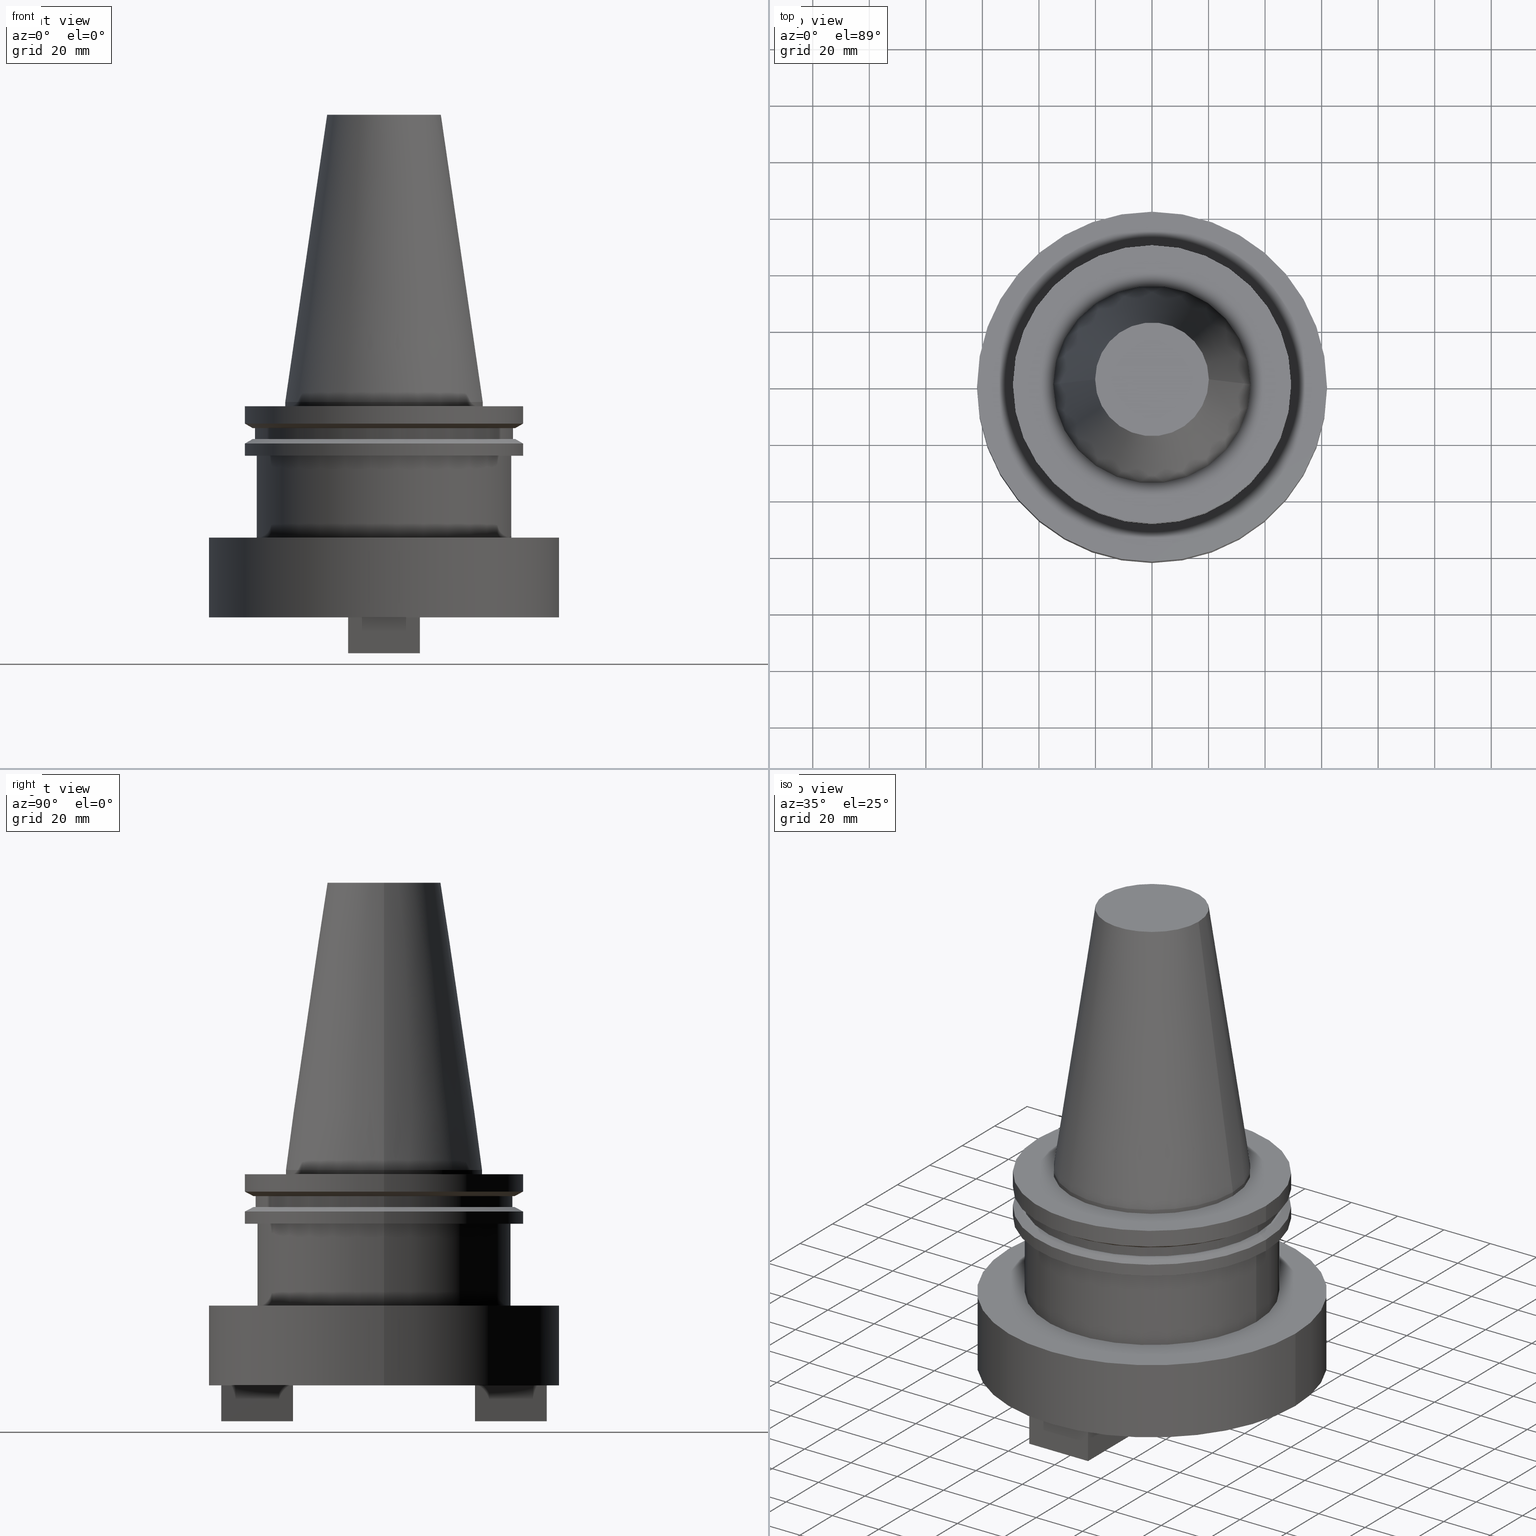
[diagram: canonical four-view strip — front | top / right | iso, engineering-drawing reading convention]
A machine part, canonical four-view strip (front | top / right | iso — engineering-drawing reading convention). The complete STEP part file that produces these views, byte-faithful:
ISO-10303-21;
HEADER;
FILE_DESCRIPTION (( 'STEP AP203' ),
    '1' );
FILE_NAME ('BCV50H-SMC2_500-3.stp',
    '2022-03-03T21:11:22',
    ( '' ),
    ( '' ),
    'SwSTEP 2.0',
    'SolidWorks 2021',
    '' );
FILE_SCHEMA (( 'CONFIG_CONTROL_DESIGN' ));
ENDSEC;

DATA;
#1 = ORIENTED_EDGE ( 'NONE', *, *, #1009, .F. ) ;
#2 = LINE ( 'NONE', #442, #1015 ) ;
#3 = CARTESIAN_POINT ( 'NONE',  ( 12.70000000000000284, -32.18999999999999773, -88.90000000000001990 ) ) ;
#4 = LINE ( 'NONE', #522, #242 ) ;
#5 = EDGE_CURVE ( 'NONE', #1038, #627, #994, .T. ) ;
#6 = ORIENTED_EDGE ( 'NONE', *, *, #1051, .F. ) ;
#7 = PERSON_AND_ORGANIZATION ( #320, #886 ) ;
#8 = CARTESIAN_POINT ( 'NONE',  ( 0.000000000000000000, 0.000000000000000000, 0.000000000000000000 ) ) ;
#9 = CARTESIAN_POINT ( 'NONE',  ( 0.000000000000000000, 0.000000000000000000, -19.04999999999998295 ) ) ;
#10 = CARTESIAN_POINT ( 'NONE',  ( 0.000000000000000000, 0.000000000000000000, -14.70761014474859785 ) ) ;
#11 = AXIS2_PLACEMENT_3D ( 'NONE', #561, #149, #895 ) ;
#12 = VECTOR ( 'NONE', #424, 1000.000000000000000 ) ;
#13 = EDGE_LOOP ( 'NONE', ( #14, #393 ) ) ;
#14 = ORIENTED_EDGE ( 'NONE', *, *, #64, .T. ) ;
#15 = CC_DESIGN_DATE_AND_TIME_ASSIGNMENT ( #530, #35, ( #798 ) ) ;
#16 = COORDINATED_UNIVERSAL_TIME_OFFSET ( 6, 0, .BEHIND. ) ;
#17 = CARTESIAN_POINT ( 'NONE',  ( 45.64500000000000313, 0.000000000000000000, -9.254999999999984794 ) ) ;
#18 = CARTESIAN_POINT ( 'NONE',  ( 0.000000000000000000, 0.000000000000000000, 0.000000000000000000 ) ) ;
#19 = LINE ( 'NONE', #891, #67 ) ;
#20 = CIRCLE ( 'NONE', #113, 49.21500000000000341 ) ;
#21 = ORIENTED_EDGE ( 'NONE', *, *, #903, .T. ) ;
#22 = ORIENTED_EDGE ( 'NONE', *, *, #814, .F. ) ;
#23 = APPROVAL_STATUS ( 'not_yet_approved' ) ;
#24 = DIRECTION ( 'NONE',  ( 0.000000000000000000, 1.000000000000000000, 0.000000000000000000 ) ) ;
#25 = CARTESIAN_POINT ( 'NONE',  ( -45.00000000000000000, 5.510910596163089556E-15, -48.00999999999999801 ) ) ;
#26 = DIRECTION ( 'NONE',  ( -0.000000000000000000, -0.000000000000000000, 1.000000000000000000 ) ) ;
#27 = ORIENTED_EDGE ( 'NONE', *, *, #931, .T. ) ;
#28 = COORDINATED_UNIVERSAL_TIME_OFFSET ( 6, 0, .BEHIND. ) ;
#29 = FACE_OUTER_BOUND ( 'NONE', #227, .T. ) ;
#30 = LINE ( 'NONE', #795, #1031 ) ;
#31 = CARTESIAN_POINT ( 'NONE',  ( -12.69999999999999396, -57.59000000000000341, -88.90000000000001990 ) ) ;
#32 = EDGE_LOOP ( 'NONE', ( #941, #990, #981, #119 ) ) ;
#33 = AXIS2_PLACEMENT_3D ( 'NONE', #137, #966, #566 ) ;
#34 = ORIENTED_EDGE ( 'NONE', *, *, #677, .T. ) ;
#35 = DATE_TIME_ROLE ( 'classification_date' ) ;
#36 = PLANE ( 'NONE',  #944 ) ;
#37 = DIRECTION ( 'NONE',  ( -0.000000000000000000, -0.000000000000000000, 1.000000000000000000 ) ) ;
#38 = VECTOR ( 'NONE', #127, 1000.000000000000114 ) ;
#39 = DIRECTION ( 'NONE',  ( -6.829619984160675302E-17, 1.000000000000000000, 0.000000000000000000 ) ) ;
#40 = EDGE_CURVE ( 'NONE', #50, #428, #417, .T. ) ;
#41 = VERTEX_POINT ( 'NONE', #585 ) ;
#42 = AXIS2_PLACEMENT_3D ( 'NONE', #853, #470, #210 ) ;
#43 = DIRECTION ( 'NONE',  ( -1.000000000000000000, 0.000000000000000000, 0.000000000000000000 ) ) ;
#44 = CARTESIAN_POINT ( 'NONE',  ( 0.000000000000000000, 0.000000000000000000, 101.5999999999999943 ) ) ;
#45 = DIRECTION ( 'NONE',  ( -0.000000000000000000, -0.000000000000000000, 1.000000000000000000 ) ) ;
#46 = ORIENTED_EDGE ( 'NONE', *, *, #440, .T. ) ;
#47 = EDGE_CURVE ( 'NONE', #711, #563, #20, .T. ) ;
#48 = CARTESIAN_POINT ( 'NONE',  ( 0.000000000000000000, 0.000000000000000000, -13.10499999999999154 ) ) ;
#49 = LINE ( 'NONE', #310, #701 ) ;
#50 = VERTEX_POINT ( 'NONE', #666 ) ;
#51 = ORIENTED_EDGE ( 'NONE', *, *, #278, .T. ) ;
#52 = ADVANCED_FACE ( 'NONE', ( #85 ), #512, .F. ) ;
#53 = FACE_BOUND ( 'NONE', #1061, .T. ) ;
#54 = DIRECTION ( 'NONE',  ( -0.000000000000000000, -0.000000000000000000, 1.000000000000000000 ) ) ;
#55 = VECTOR ( 'NONE', #77, 1000.000000000000000 ) ;
#56 = ORIENTED_EDGE ( 'NONE', *, *, #644, .F. ) ;
#57 = CC_DESIGN_SECURITY_CLASSIFICATION ( #798, ( #671 ) ) ;
#58 = CARTESIAN_POINT ( 'NONE',  ( -12.69999999999999396, 32.18999999999999773, -76.20000000000001705 ) ) ;
#59 = ADVANCED_FACE ( 'NONE', ( #658 ), #590, .F. ) ;
#60 = FACE_OUTER_BOUND ( 'NONE', #646, .T. ) ;
#61 = EDGE_LOOP ( 'NONE', ( #465, #950, #322, #706 ) ) ;
#62 = ORIENTED_EDGE ( 'NONE', *, *, #864, .T. ) ;
#63 = CARTESIAN_POINT ( 'NONE',  ( 0.000000000000000000, 0.000000000000000000, 101.5999999999999943 ) ) ;
#64 = EDGE_CURVE ( 'NONE', #642, #333, #509, .T. ) ;
#65 = ORIENTED_EDGE ( 'NONE', *, *, #76, .F. ) ;
#66 = PLANE ( 'NONE',  #845 ) ;
#67 = VECTOR ( 'NONE', #303, 1000.000000000000000 ) ;
#68 = ORIENTED_EDGE ( 'NONE', *, *, #951, .F. ) ;
#69 = DIRECTION ( 'NONE',  ( 1.000000000000000000, 0.000000000000000000, 0.000000000000000000 ) ) ;
#70 = CC_DESIGN_APPROVAL ( #912, ( #798 ) ) ;
#71 = DIRECTION ( 'NONE',  ( -0.8660254037844405950, 0.000000000000000000, -0.4999999999999965583 ) ) ;
#72 = CARTESIAN_POINT ( 'NONE',  ( 12.70000000000000284, -32.18999999999999773, -88.90000000000001990 ) ) ;
#73 = AXIS2_PLACEMENT_3D ( 'NONE', #367, #797, #279 ) ;
#74 = VECTOR ( 'NONE', #1014, 1000.000000000000000 ) ;
#75 = ORIENTED_EDGE ( 'NONE', *, *, #123, .T. ) ;
#76 = EDGE_CURVE ( 'NONE', #257, #811, #906, .T. ) ;
#77 = DIRECTION ( 'NONE',  ( -0.000000000000000000, -0.000000000000000000, 1.000000000000000000 ) ) ;
#78 = ORIENTED_EDGE ( 'NONE', *, *, #357, .T. ) ;
#79 = VERTEX_POINT ( 'NONE', #441 ) ;
#80 = FACE_OUTER_BOUND ( 'NONE', #32, .T. ) ;
#81 = CARTESIAN_POINT ( 'NONE',  ( 0.000000000000000000, 45.64500000000000313, -13.10499999999999332 ) ) ;
#82 = EDGE_CURVE ( 'NONE', #589, #321, #738, .T. ) ;
#83 = LINE ( 'NONE', #669, #430 ) ;
#84 = CIRCLE ( 'NONE', #841, 46.43919780457007818 ) ;
#85 = FACE_OUTER_BOUND ( 'NONE', #579, .T. ) ;
#86 = LINE ( 'NONE', #837, #382 ) ;
#87 = APPROVAL_PERSON_ORGANIZATION ( #1025, #989, #542 ) ;
#88 = DIRECTION ( 'NONE',  ( -0.000000000000000000, -0.000000000000000000, 1.000000000000000000 ) ) ;
#89 = ADVANCED_FACE ( 'NONE', ( #612 ), #1006, .T. ) ;
#90 = AXIS2_PLACEMENT_3D ( 'NONE', #203, #954, #462 ) ;
#91 = DIRECTION ( 'NONE',  ( 1.000000000000000000, 6.829619984160675302E-17, 0.000000000000000000 ) ) ;
#92 = CARTESIAN_POINT ( 'NONE',  ( -12.69999999999999396, 32.18999999999999773, -88.90000000000001990 ) ) ;
#93 = APPROVAL_STATUS ( 'not_yet_approved' ) ;
#94 = CARTESIAN_POINT ( 'NONE',  ( 12.70000000000000284, -32.18999999999999773, -88.90000000000001990 ) ) ;
#95 = CC_DESIGN_PERSON_AND_ORGANIZATION_ASSIGNMENT ( #207, #438, ( #181 ) ) ;
#96 = EDGE_LOOP ( 'NONE', ( #914, #722, #249, #191 ) ) ;
#97 = DIRECTION ( 'NONE',  ( -0.000000000000000000, -0.000000000000000000, 1.000000000000000000 ) ) ;
#98 = VERTEX_POINT ( 'NONE', #1063 ) ;
#99 = VERTEX_POINT ( 'NONE', #136 ) ;
#100 = DIRECTION ( 'NONE',  ( 2.731847993664263218E-15, -1.000000000000000000, 0.000000000000000000 ) ) ;
#101 = DIRECTION ( 'NONE',  ( 1.000000000000000000, 0.000000000000000000, 0.000000000000000000 ) ) ;
#102 = DIRECTION ( 'NONE',  ( -1.000000000000000000, 6.829619984160658046E-17, 0.000000000000000000 ) ) ;
#103 = CIRCLE ( 'NONE', #750, 11.90499999999999403 ) ;
#104 = AXIS2_PLACEMENT_3D ( 'NONE', #63, #974, #222 ) ;
#105 = VERTEX_POINT ( 'NONE', #262 ) ;
#106 = ORIENTED_EDGE ( 'NONE', *, *, #931, .F. ) ;
#107 = APPLICATION_PROTOCOL_DEFINITION ( 'international standard', 'config_control_design', 1994, #688 ) ;
#108 = VECTOR ( 'NONE', #643, 1000.000000000000000 ) ;
#109 = AXIS2_PLACEMENT_3D ( 'NONE', #1062, #164, #908 ) ;
#110 = CARTESIAN_POINT ( 'NONE',  ( -12.69999999999999574, -32.19000000000006878, -88.90000000000001990 ) ) ;
#111 = CARTESIAN_POINT ( 'NONE',  ( 0.000000000000000000, 0.000000000000000000, -76.20000000000001705 ) ) ;
#112 = CARTESIAN_POINT ( 'NONE',  ( 0.000000000000000000, 0.000000000000000000, 0.000000000000000000 ) ) ;
#113 = AXIS2_PLACEMENT_3D ( 'NONE', #594, #672, #748 ) ;
#114 = ORIENTED_EDGE ( 'NONE', *, *, #1058, .F. ) ;
#115 = EDGE_CURVE ( 'NONE', #726, #731, #401, .T. ) ;
#116 = DIRECTION ( 'NONE',  ( 0.000000000000000000, -0.000000000000000000, 1.000000000000000000 ) ) ;
#117 = FACE_OUTER_BOUND ( 'NONE', #144, .T. ) ;
#118 = DIRECTION ( 'NONE',  ( -0.000000000000000000, -0.000000000000000000, 1.000000000000000000 ) ) ;
#119 = ORIENTED_EDGE ( 'NONE', *, *, #682, .F. ) ;
#120 = VERTEX_POINT ( 'NONE', #1076 ) ;
#121 = APPROVAL_DATE_TIME ( #281, #912 ) ;
#122 = DIRECTION ( 'NONE',  ( 1.000000000000000000, 0.000000000000000000, 0.000000000000000000 ) ) ;
#123 = EDGE_CURVE ( 'NONE', #851, #105, #4, .T. ) ;
#124 = CARTESIAN_POINT ( 'NONE',  ( 12.70000000000000284, 32.18999999999999773, -88.90000000000001990 ) ) ;
#125 = DIRECTION ( 'NONE',  ( -1.000000000000000000, -6.829619984160655581E-17, 0.000000000000000000 ) ) ;
#126 = CARTESIAN_POINT ( 'NONE',  ( 12.70000000000000462, 57.58999999999999631, -88.90000000000001990 ) ) ;
#127 = DIRECTION ( 'NONE',  ( 0.8660254037844405950, 1.060575238724909133E-16, -0.4999999999999965583 ) ) ;
#128 = CARTESIAN_POINT ( 'NONE',  ( 0.000000000000000000, 0.000000000000000000, -9.254999999999984794 ) ) ;
#129 = ADVANCED_FACE ( 'NONE', ( #513, #177 ), #331, .F. ) ;
#130 = ADVANCED_FACE ( 'NONE', ( #182 ), #173, .T. ) ;
#131 = CARTESIAN_POINT ( 'NONE',  ( 0.000000000000000000, 0.000000000000000000, -1.499999999999987566 ) ) ;
#132 = ORIENTED_EDGE ( 'NONE', *, *, #169, .F. ) ;
#133 = VERTEX_POINT ( 'NONE', #250 ) ;
#134 = AXIS2_PLACEMENT_3D ( 'NONE', #521, #91, #852 ) ;
#135 = CARTESIAN_POINT ( 'NONE',  ( 12.70000000000000462, -57.59000000000000341, -88.90000000000001990 ) ) ;
#136 = CARTESIAN_POINT ( 'NONE',  ( 61.89999999999999858, 0.000000000000000000, -48.00999999999999801 ) ) ;
#137 = CARTESIAN_POINT ( 'NONE',  ( 0.000000000000000000, 49.21499999999998920, -19.04999999999999361 ) ) ;
#138 = EDGE_CURVE ( 'NONE', #288, #761, #254, .T. ) ;
#139 = VERTEX_POINT ( 'NONE', #840 ) ;
#140 = ORIENTED_EDGE ( 'NONE', *, *, #971, .T. ) ;
#141 = CARTESIAN_POINT ( 'NONE',  ( 34.92499999999999005, 0.000000000000000000, -1.499999999999987566 ) ) ;
#142 = FACE_OUTER_BOUND ( 'NONE', #878, .T. ) ;
#143 = VERTEX_POINT ( 'NONE', #591 ) ;
#144 = EDGE_LOOP ( 'NONE', ( #967, #693, #205, #716 ) ) ;
#145 = CARTESIAN_POINT ( 'NONE',  ( -12.69999999999999396, 57.59000000000000341, -88.90000000000001990 ) ) ;
#146 = AXIS2_PLACEMENT_3D ( 'NONE', #551, #1064, #1046 ) ;
#147 = LINE ( 'NONE', #978, #108 ) ;
#148 = AXIS2_PLACEMENT_3D ( 'NONE', #94, #100, #370 ) ;
#149 = DIRECTION ( 'NONE',  ( -0.000000000000000000, -0.000000000000000000, 1.000000000000000000 ) ) ;
#150 = CIRCLE ( 'NONE', #291, 34.92499999999999005 ) ;
#151 = ORIENTED_EDGE ( 'NONE', *, *, #82, .F. ) ;
#152 = ORIENTED_EDGE ( 'NONE', *, *, #635, .F. ) ;
#153 = EDGE_CURVE ( 'NONE', #761, #1075, #86, .T. ) ;
#154 = DIRECTION ( 'NONE',  ( -0.000000000000000000, -0.000000000000000000, 1.000000000000000000 ) ) ;
#155 = ORIENTED_EDGE ( 'NONE', *, *, #745, .T. ) ;
#156 = DIRECTION ( 'NONE',  ( 1.000000000000000000, 2.731847993664263218E-15, -0.000000000000000000 ) ) ;
#157 = VERTEX_POINT ( 'NONE', #162 ) ;
#158 = DIRECTION ( 'NONE',  ( -1.000000000000000000, 0.000000000000000000, -0.000000000000000000 ) ) ;
#159 = VECTOR ( 'NONE', #1001, 1000.000000000000000 ) ;
#160 = ADVANCED_FACE ( 'NONE', ( #80 ), #1080, .T. ) ;
#161 = VERTEX_POINT ( 'NONE', #334 ) ;
#162 = CARTESIAN_POINT ( 'NONE',  ( -61.89999999999999858, 7.580563686722116084E-15, -48.00999999999999801 ) ) ;
#163 = VECTOR ( 'NONE', #490, 1000.000000000000000 ) ;
#164 = DIRECTION ( 'NONE',  ( -0.000000000000000000, -0.000000000000000000, 1.000000000000000000 ) ) ;
#165 = CLOSED_SHELL ( 'NONE', ( #717, #469, #1037, #89, #884, #160, #499, #224, #940, #704, #247, #619, #252, #130, #364, #778, #260, #655, #823, #489, #517, #433, #976, #555, #712, #580, #129, #454, #1083, #248, #319, #755, #629, #59, #796, #592, #52, #728 ) ) ;
#166 = AXIS2_PLACEMENT_3D ( 'NONE', #204, #1043, #932 ) ;
#167 = ORIENTED_EDGE ( 'NONE', *, *, #206, .T. ) ;
#168 = ORIENTED_EDGE ( 'NONE', *, *, #115, .F. ) ;
#169 = EDGE_CURVE ( 'NONE', #494, #139, #495, .T. ) ;
#170 = FACE_OUTER_BOUND ( 'NONE', #444, .T. ) ;
#171 = EDGE_CURVE ( 'NONE', #742, #161, #458, .T. ) ;
#172 = ORIENTED_EDGE ( 'NONE', *, *, #138, .F. ) ;
#173 = CYLINDRICAL_SURFACE ( 'NONE', #328, 45.00000000000000000 ) ;
#174 = CARTESIAN_POINT ( 'NONE',  ( 45.00000000000000000, 0.000000000000000000, 101.5999999999999943 ) ) ;
#175 = EDGE_CURVE ( 'NONE', #133, #120, #920, .T. ) ;
#176 = VERTEX_POINT ( 'NONE', #762 ) ;
#177 = FACE_OUTER_BOUND ( 'NONE', #188, .T. ) ;
#178 = FACE_BOUND ( 'NONE', #1030, .T. ) ;
#179 = CC_DESIGN_APPROVAL ( #502, ( #181 ) ) ;
#180 = DATE_TIME_ROLE ( 'creation_date' ) ;
#181 = PRODUCT_DEFINITION ( 'UNKNOWN', '', #671, #187 ) ;
#182 = FACE_OUTER_BOUND ( 'NONE', #870, .T. ) ;
#183 = ORIENTED_EDGE ( 'NONE', *, *, #958, .T. ) ;
#184 = EDGE_LOOP ( 'NONE', ( #907, #877, #558, #385 ) ) ;
#185 = COORDINATED_UNIVERSAL_TIME_OFFSET ( 6, 0, .BEHIND. ) ;
#186 = DIRECTION ( 'NONE',  ( -0.000000000000000000, -0.000000000000000000, 1.000000000000000000 ) ) ;
#187 = DESIGN_CONTEXT ( 'detailed design', #688, 'design' ) ;
#188 = EDGE_LOOP ( 'NONE', ( #888, #348 ) ) ;
#189 = CARTESIAN_POINT ( 'NONE',  ( -61.89999999999999858, 7.580563686722116084E-15, -76.20000000000001705 ) ) ;
#190 = ORIENTED_EDGE ( 'NONE', *, *, #47, .T. ) ;
#191 = ORIENTED_EDGE ( 'NONE', *, *, #1011, .F. ) ;
#192 = CARTESIAN_POINT ( 'NONE',  ( 0.000000000000000000, 0.000000000000000000, 0.000000000000000000 ) ) ;
#193 = FACE_OUTER_BOUND ( 'NONE', #339, .T. ) ;
#194 = LINE ( 'NONE', #618, #74 ) ;
#195 = CIRCLE ( 'NONE', #683, 11.90499999999999581 ) ;
#196 = EDGE_CURVE ( 'NONE', #139, #711, #2, .T. ) ;
#197 = VECTOR ( 'NONE', #276, 1000.000000000000000 ) ;
#198 = VERTEX_POINT ( 'NONE', #383 ) ;
#199 = DIRECTION ( 'NONE',  ( -0.000000000000000000, -0.000000000000000000, 1.000000000000000000 ) ) ;
#200 = VECTOR ( 'NONE', #43, 1000.000000000000000 ) ;
#201 = DIRECTION ( 'NONE',  ( -0.000000000000000000, -0.000000000000000000, 1.000000000000000000 ) ) ;
#202 = DIRECTION ( 'NONE',  ( -0.000000000000000000, -0.000000000000000000, 1.000000000000000000 ) ) ;
#203 = CARTESIAN_POINT ( 'NONE',  ( 0.000000000000000000, 0.000000000000000000, -1.499999999999987566 ) ) ;
#204 = CARTESIAN_POINT ( 'NONE',  ( 0.000000000000000000, 61.89999999999999858, -76.20000000000001705 ) ) ;
#205 = ORIENTED_EDGE ( 'NONE', *, *, #384, .T. ) ;
#206 = EDGE_CURVE ( 'NONE', #105, #892, #928, .T. ) ;
#207 = PERSON_AND_ORGANIZATION ( #320, #886 ) ;
#208 = CARTESIAN_POINT ( 'NONE',  ( 0.000000000000000000, 0.000000000000000000, 0.000000000000000000 ) ) ;
#209 = PLANE ( 'NONE',  #236 ) ;
#210 = DIRECTION ( 'NONE',  ( -1.000000000000000000, 0.000000000000000000, -0.000000000000000000 ) ) ;
#211 = ORIENTED_EDGE ( 'NONE', *, *, #997, .F. ) ;
#212 = ORIENTED_EDGE ( 'NONE', *, *, #1065, .T. ) ;
#213 = EDGE_CURVE ( 'NONE', #161, #742, #556, .T. ) ;
#214 = FACE_OUTER_BOUND ( 'NONE', #919, .T. ) ;
#215 = EDGE_CURVE ( 'NONE', #41, #333, #710, .T. ) ;
#216 = DIRECTION ( 'NONE',  ( -0.000000000000000000, -0.000000000000000000, 1.000000000000000000 ) ) ;
#217 = CARTESIAN_POINT ( 'NONE',  ( 49.21499999999998920, 0.000000000000000000, -19.04999999999999716 ) ) ;
#218 = DIRECTION ( 'NONE',  ( -0.000000000000000000, -0.000000000000000000, 1.000000000000000000 ) ) ;
#219 = VECTOR ( 'NONE', #972, 1000.000000000000000 ) ;
#220 = ORIENTED_EDGE ( 'NONE', *, *, #1009, .T. ) ;
#221 = AXIS2_PLACEMENT_3D ( 'NONE', #208, #765, #380 ) ;
#222 = DIRECTION ( 'NONE',  ( 1.000000000000000000, 0.000000000000000000, 0.000000000000000000 ) ) ;
#223 = DIRECTION ( 'NONE',  ( 1.000000000000000000, 0.000000000000000000, 0.000000000000000000 ) ) ;
#224 = ADVANCED_FACE ( 'NONE', ( #294 ), #939, .T. ) ;
#225 = CARTESIAN_POINT ( 'NONE',  ( -34.92499999999999005, 4.277078946022130098E-15, -1.499999999999987566 ) ) ;
#226 = ORIENTED_EDGE ( 'NONE', *, *, #403, .T. ) ;
#227 = EDGE_LOOP ( 'NONE', ( #220, #114, #413, #927 ) ) ;
#228 = VECTOR ( 'NONE', #118, 1000.000000000000000 ) ;
#229 = CARTESIAN_POINT ( 'NONE',  ( 0.000000000000000000, 0.000000000000000000, 101.5999999999999943 ) ) ;
#230 = CARTESIAN_POINT ( 'NONE',  ( 12.70000000000000462, 57.58999999999999631, -88.90000000000001990 ) ) ;
#231 = ORIENTED_EDGE ( 'NONE', *, *, #745, .F. ) ;
#232 = DIRECTION ( 'NONE',  ( -0.000000000000000000, -0.000000000000000000, 1.000000000000000000 ) ) ;
#233 = FACE_BOUND ( 'NONE', #835, .T. ) ;
#234 = ORIENTED_EDGE ( 'NONE', *, *, #76, .T. ) ;
#235 = EDGE_CURVE ( 'NONE', #143, #198, #686, .T. ) ;
#236 = AXIS2_PLACEMENT_3D ( 'NONE', #703, #125, #468 ) ;
#237 = VECTOR ( 'NONE', #301, 1000.000000000000000 ) ;
#238 = DIRECTION ( 'NONE',  ( 1.000000000000000000, 0.000000000000000000, 0.000000000000000000 ) ) ;
#239 = LINE ( 'NONE', #392, #733 ) ;
#240 = CIRCLE ( 'NONE', #325, 45.64500000000000313 ) ;
#241 = ORIENTED_EDGE ( 'NONE', *, *, #909, .F. ) ;
#242 = VECTOR ( 'NONE', #1086, 1000.000000000000000 ) ;
#243 = ADVANCED_BREP_SHAPE_REPRESENTATION ( 'BCV50H-SMC2_500-3', ( #799, #622 ), #398 ) ;
#244 = CARTESIAN_POINT ( 'NONE',  ( 0.000000000000000000, 0.000000000000000000, 101.5999999999999943 ) ) ;
#245 = AXIS2_PLACEMENT_3D ( 'NONE', #126, #705, #698 ) ;
#246 = ORIENTED_EDGE ( 'NONE', *, *, #917, .F. ) ;
#247 = ADVANCED_FACE ( 'NONE', ( #766, #524, #606, #613 ), #361, .F. ) ;
#248 = ADVANCED_FACE ( 'NONE', ( #299 ), #626, .F. ) ;
#249 = ORIENTED_EDGE ( 'NONE', *, *, #175, .T. ) ;
#250 = CARTESIAN_POINT ( 'NONE',  ( 46.43919780457007818, 0.000000000000000000, -9.254999999999984794 ) ) ;
#251 = CIRCLE ( 'NONE', #534, 11.90499999999999403 ) ;
#252 = ADVANCED_FACE ( 'NONE', ( #955 ), #535, .F. ) ;
#253 = ORIENTED_EDGE ( 'NONE', *, *, #396, .F. ) ;
#254 = LINE ( 'NONE', #916, #779 ) ;
#255 = VECTOR ( 'NONE', #759, 1000.000000000000000 ) ;
#256 = DIRECTION ( 'NONE',  ( -0.8660254037844405950, 1.060575238724909133E-16, 0.4999999999999965583 ) ) ;
#257 = VERTEX_POINT ( 'NONE', #451 ) ;
#258 = CARTESIAN_POINT ( 'NONE',  ( 12.70000000000000284, 32.18999999999999773, -88.90000000000001990 ) ) ;
#259 = AXIS2_PLACEMENT_3D ( 'NONE', #999, #261, #923 ) ;
#260 = ADVANCED_FACE ( 'NONE', ( #692 ), #659, .T. ) ;
#261 = DIRECTION ( 'NONE',  ( 0.000000000000000000, 1.000000000000000000, 0.000000000000000000 ) ) ;
#262 = CARTESIAN_POINT ( 'NONE',  ( 34.92499999999999005, 4.277078946022130098E-15, 0.000000000000000000 ) ) ;
#263 = CARTESIAN_POINT ( 'NONE',  ( 0.000000000000000000, 0.000000000000000000, -48.00999999999999801 ) ) ;
#264 = ORIENTED_EDGE ( 'NONE', *, *, #1011, .T. ) ;
#265 = EDGE_CURVE ( 'NONE', #915, #143, #194, .T. ) ;
#266 = PERSON_AND_ORGANIZATION ( #320, #886 ) ;
#267 = VECTOR ( 'NONE', #492, 1000.000000000000000 ) ;
#268 = AXIS2_PLACEMENT_3D ( 'NONE', #480, #154, #402 ) ;
#269 = EDGE_LOOP ( 'NONE', ( #500, #654, #253, #763 ) ) ;
#270 = SHAPE_DEFINITION_REPRESENTATION ( #1022, #243 ) ;
#271 = DIRECTION ( 'NONE',  ( 1.000000000000000000, 0.000000000000000000, -0.000000000000000000 ) ) ;
#272 = DIRECTION ( 'NONE',  ( 1.000000000000000000, 0.000000000000000000, 0.000000000000000000 ) ) ;
#273 = CARTESIAN_POINT ( 'NONE',  ( -12.69999999999999396, -57.59000000000000341, -76.20000000000001705 ) ) ;
#274 = ORIENTED_EDGE ( 'NONE', *, *, #697, .T. ) ;
#275 = EDGE_LOOP ( 'NONE', ( #602, #949, #957, #405 ) ) ;
#276 = DIRECTION ( 'NONE',  ( 1.000000000000000000, -2.731847993664263218E-16, -0.000000000000000000 ) ) ;
#277 = DIRECTION ( 'NONE',  ( 1.000000000000000000, 0.000000000000000000, 0.000000000000000000 ) ) ;
#278 = EDGE_CURVE ( 'NONE', #288, #143, #948, .T. ) ;
#279 = DIRECTION ( 'NONE',  ( 1.000000000000000000, 0.000000000000000000, 0.000000000000000000 ) ) ;
#280 = ORIENTED_EDGE ( 'NONE', *, *, #213, .T. ) ;
#281 = DATE_AND_TIME ( #684, #1012 ) ;
#282 = CARTESIAN_POINT ( 'NONE',  ( 0.000000000000000000, 0.000000000000000000, -19.04999999999999716 ) ) ;
#283 = FACE_OUTER_BOUND ( 'NONE', #699, .T. ) ;
#284 = EDGE_CURVE ( 'NONE', #892, #105, #1017, .T. ) ;
#285 = DIRECTION ( 'NONE',  ( 1.000000000000000000, 0.000000000000000000, 0.000000000000000000 ) ) ;
#286 = VECTOR ( 'NONE', #45, 1000.000000000000000 ) ;
#287 = ORIENTED_EDGE ( 'NONE', *, *, #820, .F. ) ;
#288 = VERTEX_POINT ( 'NONE', #31 ) ;
#289 = PERSON_AND_ORGANIZATION ( #320, #886 ) ;
#290 = CIRCLE ( 'NONE', #902, 49.21500000000000341 ) ;
#291 = AXIS2_PLACEMENT_3D ( 'NONE', #678, #329, #834 ) ;
#292 = DIRECTION ( 'NONE',  ( 1.000000000000000000, 0.000000000000000000, 0.000000000000000000 ) ) ;
#293 = CARTESIAN_POINT ( 'NONE',  ( -34.92499999999999005, 0.000000000000000000, 0.000000000000000000 ) ) ;
#294 = FACE_OUTER_BOUND ( 'NONE', #1060, .T. ) ;
#295 = ORIENTED_EDGE ( 'NONE', *, *, #1077, .F. ) ;
#296 = VERTEX_POINT ( 'NONE', #189 ) ;
#297 = DIRECTION ( 'NONE',  ( -0.000000000000000000, -0.000000000000000000, 1.000000000000000000 ) ) ;
#298 = DIRECTION ( 'NONE',  ( 0.000000000000000000, 0.000000000000000000, -1.000000000000000000 ) ) ;
#299 = FACE_OUTER_BOUND ( 'NONE', #269, .T. ) ;
#300 = EDGE_CURVE ( 'NONE', #157, #99, #689, .T. ) ;
#301 = DIRECTION ( 'NONE',  ( -0.000000000000000000, -0.000000000000000000, 1.000000000000000000 ) ) ;
#302 = PLANE ( 'NONE',  #426 ) ;
#303 = DIRECTION ( 'NONE',  ( -0.000000000000000000, -0.000000000000000000, 1.000000000000000000 ) ) ;
#304 = VECTOR ( 'NONE', #557, 1000.000000000000000 ) ;
#305 = ORIENTED_EDGE ( 'NONE', *, *, #497, .F. ) ;
#306 = AXIS2_PLACEMENT_3D ( 'NONE', #856, #1026, #786 ) ;
#307 = DIRECTION ( 'NONE',  ( -0.000000000000000000, -0.000000000000000000, 1.000000000000000000 ) ) ;
#308 = FACE_OUTER_BOUND ( 'NONE', #434, .T. ) ;
#309 = VECTOR ( 'NONE', #346, 1000.000000000000000 ) ;
#310 = CARTESIAN_POINT ( 'NONE',  ( -45.64500000000000313, 5.589900314708094957E-15, 101.5999999999999943 ) ) ;
#311 = ORIENTED_EDGE ( 'NONE', *, *, #1077, .T. ) ;
#312 = VECTOR ( 'NONE', #1085, 1000.000000000000000 ) ;
#313 = DIRECTION ( 'NONE',  ( -1.000000000000000000, 0.000000000000000000, -0.000000000000000000 ) ) ;
#314 = PLANE ( 'NONE',  #146 ) ;
#315 = ORIENTED_EDGE ( 'NONE', *, *, #215, .T. ) ;
#316 = ORIENTED_EDGE ( 'NONE', *, *, #785, .F. ) ;
#317 = DIRECTION ( 'NONE',  ( 1.000000000000000000, 0.000000000000000000, 0.000000000000000000 ) ) ;
#318 = CARTESIAN_POINT ( 'NONE',  ( 34.92499999999999005, 4.277078946022130098E-15, 0.000000000000000000 ) ) ;
#319 = ADVANCED_FACE ( 'NONE', ( #527 ), #374, .F. ) ;
#320 = PERSON ( 'UNSPECIFIED', 'UNSPECIFIED', 'UNSPECIFIED', ('UNSPECIFIED'), ('UNSPECIFIED'), ('UNSPECIFIED') ) ;
#321 = VERTEX_POINT ( 'NONE', #775 ) ;
#322 = ORIENTED_EDGE ( 'NONE', *, *, #599, .F. ) ;
#323 = VECTOR ( 'NONE', #71, 1000.000000000000114 ) ;
#324 = FACE_OUTER_BOUND ( 'NONE', #968, .T. ) ;
#325 = AXIS2_PLACEMENT_3D ( 'NONE', #48, #732, #238 ) ;
#326 = ORIENTED_EDGE ( 'NONE', *, *, #384, .F. ) ;
#327 = EDGE_CURVE ( 'NONE', #98, #790, #19, .T. ) ;
#328 = AXIS2_PLACEMENT_3D ( 'NONE', #662, #516, #1007 ) ;
#329 = DIRECTION ( 'NONE',  ( -0.000000000000000000, -0.000000000000000000, 1.000000000000000000 ) ) ;
#330 = ORIENTED_EDGE ( 'NONE', *, *, #153, .T. ) ;
#331 = PLANE ( 'NONE',  #625 ) ;
#332 = CC_DESIGN_PERSON_AND_ORGANIZATION_ASSIGNMENT ( #289, #1005, ( #798 ) ) ;
#333 = VERTEX_POINT ( 'NONE', #807 ) ;
#334 = CARTESIAN_POINT ( 'NONE',  ( -20.10819343178871321, 0.000000000000000000, 101.5999999999999801 ) ) ;
#335 = CARTESIAN_POINT ( 'NONE',  ( 45.64500000000000313, 0.000000000000000000, 101.5999999999999943 ) ) ;
#336 = DIRECTION ( 'NONE',  ( 1.000000000000000000, 0.000000000000000000, 0.000000000000000000 ) ) ;
#337 = AXIS2_PLACEMENT_3D ( 'NONE', #861, #616, #101 ) ;
#338 = CIRCLE ( 'NONE', #734, 45.00000000000000000 ) ;
#339 = EDGE_LOOP ( 'NONE', ( #6, #628, #75, #648 ) ) ;
#340 = DIRECTION ( 'NONE',  ( -0.000000000000000000, -0.000000000000000000, 1.000000000000000000 ) ) ;
#341 = DIRECTION ( 'NONE',  ( -0.000000000000000000, -0.000000000000000000, 1.000000000000000000 ) ) ;
#342 = DIRECTION ( 'NONE',  ( -0.000000000000000000, -0.000000000000000000, 1.000000000000000000 ) ) ;
#343 = EDGE_CURVE ( 'NONE', #790, #428, #103, .T. ) ;
#344 = ORIENTED_EDGE ( 'NONE', *, *, #265, .T. ) ;
#345 = DIRECTION ( 'NONE',  ( -1.000000000000000000, 0.000000000000000000, -0.000000000000000000 ) ) ;
#346 = DIRECTION ( 'NONE',  ( -0.000000000000000000, -0.000000000000000000, 1.000000000000000000 ) ) ;
#347 = CARTESIAN_POINT ( 'NONE',  ( 0.000000000000000000, 45.00000000000000000, -48.00999999999999801 ) ) ;
#348 = ORIENTED_EDGE ( 'NONE', *, *, #300, .T. ) ;
#349 = COORDINATED_UNIVERSAL_TIME_OFFSET ( 6, 0, .BEHIND. ) ;
#350 = CARTESIAN_POINT ( 'NONE',  ( 45.64500000000000313, 0.000000000000000000, -13.10499999999999154 ) ) ;
#351 = CONICAL_SURFACE ( 'NONE', #963, 34.92499999999999005, 0.1448138465474119452 ) ;
#352 = DIRECTION ( 'NONE',  ( -0.000000000000000000, -0.000000000000000000, 1.000000000000000000 ) ) ;
#353 = DIRECTION ( 'NONE',  ( -0.000000000000000000, -0.000000000000000000, 1.000000000000000000 ) ) ;
#354 = ORIENTED_EDGE ( 'NONE', *, *, #785, .T. ) ;
#355 = ORIENTED_EDGE ( 'NONE', *, *, #278, .F. ) ;
#356 = AXIS2_PLACEMENT_3D ( 'NONE', #809, #815, #718 ) ;
#357 = EDGE_CURVE ( 'NONE', #742, #105, #975, .T. ) ;
#358 = DIRECTION ( 'NONE',  ( -0.000000000000000000, -0.000000000000000000, 1.000000000000000000 ) ) ;
#359 = DIRECTION ( 'NONE',  ( 1.000000000000000000, 0.000000000000000000, 0.000000000000000000 ) ) ;
#360 = VECTOR ( 'NONE', #39, 1000.000000000000000 ) ;
#361 = PLANE ( 'NONE',  #166 ) ;
#362 = EDGE_LOOP ( 'NONE', ( #633, #1067, #962, #805 ) ) ;
#363 = PERSON_AND_ORGANIZATION ( #320, #886 ) ;
#364 = ADVANCED_FACE ( 'NONE', ( #142, #233 ), #899, .F. ) ;
#365 = DIRECTION ( 'NONE',  ( 1.000000000000000000, 0.000000000000000000, 0.000000000000000000 ) ) ;
#366 = DIRECTION ( 'NONE',  ( 1.000000000000000000, 0.000000000000000000, 0.000000000000000000 ) ) ;
#367 = CARTESIAN_POINT ( 'NONE',  ( 0.000000000000000000, 0.000000000000000000, 101.5999999999999801 ) ) ;
#368 = VERTEX_POINT ( 'NONE', #1047 ) ;
#369 = APPROVAL_ROLE ( '' ) ;
#370 = DIRECTION ( 'NONE',  ( 1.000000000000000000, 2.731847993664263218E-15, 0.000000000000000000 ) ) ;
#371 = CARTESIAN_POINT ( 'NONE',  ( -45.00000000000000000, 5.510910596163089556E-15, -19.04999999999998295 ) ) ;
#372 = CIRCLE ( 'NONE', #924, 45.00000000000000000 ) ;
#373 = EDGE_CURVE ( 'NONE', #731, #257, #49, .T. ) ;
#374 = PLANE ( 'NONE',  #942 ) ;
#375 = CONICAL_SURFACE ( 'NONE', #979, 46.43919780457007818, 1.047197551196601628 ) ;
#376 = VERTEX_POINT ( 'NONE', #225 ) ;
#377 = DATE_AND_TIME ( #934, #996 ) ;
#378 = LOCAL_TIME ( 15, 11, 22.00000000000000000, #16 ) ;
#379 = AXIS2_PLACEMENT_3D ( 'NONE', #1082, #342, #588 ) ;
#380 = DIRECTION ( 'NONE',  ( -1.000000000000000000, 0.000000000000000000, 0.000000000000000000 ) ) ;
#381 = FACE_BOUND ( 'NONE', #1024, .T. ) ;
#382 = VECTOR ( 'NONE', #743, 1000.000000000000000 ) ;
#383 = CARTESIAN_POINT ( 'NONE',  ( -12.69999999999999574, -32.19000000000007589, -76.20000000000001705 ) ) ;
#384 = EDGE_CURVE ( 'NONE', #390, #99, #239, .T. ) ;
#385 = ORIENTED_EDGE ( 'NONE', *, *, #40, .F. ) ;
#386 = ORIENTED_EDGE ( 'NONE', *, *, #5, .T. ) ;
#387 = DIRECTION ( 'NONE',  ( -0.000000000000000000, -0.000000000000000000, 1.000000000000000000 ) ) ;
#388 = DIRECTION ( 'NONE',  ( 1.000000000000000000, 0.000000000000000000, 0.000000000000000000 ) ) ;
#389 = DIRECTION ( 'NONE',  ( -6.829619984160658046E-17, -1.000000000000000000, 0.000000000000000000 ) ) ;
#390 = VERTEX_POINT ( 'NONE', #885 ) ;
#391 = FACE_OUTER_BOUND ( 'NONE', #61, .T. ) ;
#392 = CARTESIAN_POINT ( 'NONE',  ( 61.89999999999999858, 0.000000000000000000, 0.000000000000000000 ) ) ;
#393 = ORIENTED_EDGE ( 'NONE', *, *, #414, .T. ) ;
#394 = CIRCLE ( 'NONE', #533, 45.64500000000000313 ) ;
#395 = ORIENTED_EDGE ( 'NONE', *, *, #971, .F. ) ;
#396 = EDGE_CURVE ( 'NONE', #627, #536, #574, .T. ) ;
#397 = FACE_OUTER_BOUND ( 'NONE', #13, .T. ) ;
#398 =( GEOMETRIC_REPRESENTATION_CONTEXT ( 3 ) GLOBAL_UNCERTAINTY_ASSIGNED_CONTEXT ( ( #905 ) ) GLOBAL_UNIT_ASSIGNED_CONTEXT ( ( #918, #831, #431 ) ) REPRESENTATION_CONTEXT ( 'NONE', 'WORKASPACE' ) );
#399 = CARTESIAN_POINT ( 'NONE',  ( 12.70000000000000462, 57.58999999999999631, -76.20000000000001705 ) ) ;
#400 = VERTEX_POINT ( 'NONE', #803 ) ;
#401 = CIRCLE ( 'NONE', #847, 45.64500000000000313 ) ;
#402 = DIRECTION ( 'NONE',  ( 1.000000000000000000, 0.000000000000000000, 0.000000000000000000 ) ) ;
#403 = EDGE_CURVE ( 'NONE', #536, #776, #649, .T. ) ;
#404 = LINE ( 'NONE', #399, #304 ) ;
#405 = ORIENTED_EDGE ( 'NONE', *, *, #1089, .T. ) ;
#406 = ORIENTED_EDGE ( 'NONE', *, *, #408, .F. ) ;
#407 = LINE ( 'NONE', #1045, #163 ) ;
#408 = EDGE_CURVE ( 'NONE', #79, #808, #404, .T. ) ;
#409 = VERTEX_POINT ( 'NONE', #980 ) ;
#410 = AXIS2_PLACEMENT_3D ( 'NONE', #44, #461, #946 ) ;
#411 = LINE ( 'NONE', #72, #55 ) ;
#412 = APPROVAL_PERSON_ORGANIZATION ( #266, #912, #446 ) ;
#413 = ORIENTED_EDGE ( 'NONE', *, *, #153, .F. ) ;
#414 = EDGE_CURVE ( 'NONE', #333, #642, #913, .T. ) ;
#415 = AXIS2_PLACEMENT_3D ( 'NONE', #9, #679, #875 ) ;
#416 = LINE ( 'NONE', #258, #255 ) ;
#417 = LINE ( 'NONE', #508, #1040 ) ;
#418 = CARTESIAN_POINT ( 'NONE',  ( 0.000000000000000000, 0.000000000000000000, -13.10499999999999154 ) ) ;
#419 = ORIENTED_EDGE ( 'NONE', *, *, #5, .F. ) ;
#420 = LINE ( 'NONE', #506, #813 ) ;
#421 = ORIENTED_EDGE ( 'NONE', *, *, #844, .F. ) ;
#422 = ORIENTED_EDGE ( 'NONE', *, *, #175, .F. ) ;
#423 = DIRECTION ( 'NONE',  ( 1.000000000000000000, 0.000000000000000000, 0.000000000000000000 ) ) ;
#424 = DIRECTION ( 'NONE',  ( -0.000000000000000000, -0.000000000000000000, 1.000000000000000000 ) ) ;
#425 = DIRECTION ( 'NONE',  ( 0.000000000000000000, 0.000000000000000000, -1.000000000000000000 ) ) ;
#426 = AXIS2_PLACEMENT_3D ( 'NONE', #631, #1021, #277 ) ;
#427 = AXIS2_PLACEMENT_3D ( 'NONE', #498, #553, #647 ) ;
#428 = VERTEX_POINT ( 'NONE', #476 ) ;
#429 = DIRECTION ( 'NONE',  ( -0.000000000000000000, -0.000000000000000000, 1.000000000000000000 ) ) ;
#430 = VECTOR ( 'NONE', #753, 1000.000000000000000 ) ;
#431 =( NAMED_UNIT ( * ) SI_UNIT ( $, .STERADIAN. ) SOLID_ANGLE_UNIT ( ) );
#432 = ORIENTED_EDGE ( 'NONE', *, *, #235, .F. ) ;
#433 = ADVANCED_FACE ( 'NONE', ( #729 ), #481, .T. ) ;
#434 = EDGE_LOOP ( 'NONE', ( #821, #511, #316, #422 ) ) ;
#435 = DIRECTION ( 'NONE',  ( 0.8660254037844405950, 0.000000000000000000, 0.4999999999999965583 ) ) ;
#436 = PRODUCT ( 'BCV50H-SMC2_500-3', 'BCV50H-SMC2_500-3', '', ( #925 ) ) ;
#437 = ORIENTED_EDGE ( 'NONE', *, *, #64, .F. ) ;
#438 = PERSON_AND_ORGANIZATION_ROLE ( 'creator' ) ;
#439 = FACE_OUTER_BOUND ( 'NONE', #445, .T. ) ;
#440 = EDGE_CURVE ( 'NONE', #494, #563, #485, .T. ) ;
#441 = CARTESIAN_POINT ( 'NONE',  ( 12.70000000000000462, 57.58999999999999631, -76.20000000000001705 ) ) ;
#442 = CARTESIAN_POINT ( 'NONE',  ( -49.21499999999999631, 6.027099222003697826E-15, 101.5999999999999943 ) ) ;
#443 = EDGE_CURVE ( 'NONE', #808, #910, #725, .T. ) ;
#444 = EDGE_LOOP ( 'NONE', ( #140, #675 ) ) ;
#445 = EDGE_LOOP ( 'NONE', ( #570, #21, #241, #326 ) ) ;
#446 = APPROVAL_ROLE ( '' ) ;
#447 = DIRECTION ( 'NONE',  ( 0.000000000000000000, 0.000000000000000000, 1.000000000000000000 ) ) ;
#448 = CARTESIAN_POINT ( 'NONE',  ( 49.21500000000000341, 0.000000000000000000, -14.70761014474859785 ) ) ;
#449 = AXIS2_PLACEMENT_3D ( 'NONE', #192, #297, #702 ) ;
#450 = ORIENTED_EDGE ( 'NONE', *, *, #584, .T. ) ;
#451 = CARTESIAN_POINT ( 'NONE',  ( -45.64500000000000313, 5.589900314708094957E-15, -9.254999999999984794 ) ) ;
#452 = ORIENTED_EDGE ( 'NONE', *, *, #670, .F. ) ;
#453 = ORIENTED_EDGE ( 'NONE', *, *, #1004, .T. ) ;
#454 = ADVANCED_FACE ( 'NONE', ( #60 ), #314, .F. ) ;
#455 = DIRECTION ( 'NONE',  ( 1.000000000000000000, 0.000000000000000000, 0.000000000000000000 ) ) ;
#456 = CYLINDRICAL_SURFACE ( 'NONE', #471, 49.21499999999999631 ) ;
#457 = CYLINDRICAL_SURFACE ( 'NONE', #597, 61.89999999999999858 ) ;
#458 = CIRCLE ( 'NONE', #866, 20.10819343178871321 ) ;
#459 = CARTESIAN_POINT ( 'NONE',  ( 0.000000000000000000, 0.000000000000000000, -48.00999999999999801 ) ) ;
#460 = CARTESIAN_POINT ( 'NONE',  ( 12.70000000000000462, 57.58999999999999631, -76.20000000000001705 ) ) ;
#461 = DIRECTION ( 'NONE',  ( -0.000000000000000000, -0.000000000000000000, 1.000000000000000000 ) ) ;
#462 = DIRECTION ( 'NONE',  ( 1.000000000000000000, 0.000000000000000000, 0.000000000000000000 ) ) ;
#463 = CARTESIAN_POINT ( 'NONE',  ( -12.69999999999999396, -57.59000000000000341, -88.90000000000001990 ) ) ;
#464 = ORIENTED_EDGE ( 'NONE', *, *, #171, .T. ) ;
#465 = ORIENTED_EDGE ( 'NONE', *, *, #985, .T. ) ;
#466 = PERSON_AND_ORGANIZATION_ROLE ( 'design_supplier' ) ;
#467 = DIRECTION ( 'NONE',  ( -0.000000000000000000, -0.000000000000000000, 1.000000000000000000 ) ) ;
#468 = DIRECTION ( 'NONE',  ( 6.829619984160655581E-17, -1.000000000000000000, 0.000000000000000000 ) ) ;
#469 = ADVANCED_FACE ( 'NONE', ( #545 ), #550, .F. ) ;
#470 = DIRECTION ( 'NONE',  ( 0.000000000000000000, 0.000000000000000000, -1.000000000000000000 ) ) ;
#471 = AXIS2_PLACEMENT_3D ( 'NONE', #959, #358, #365 ) ;
#472 = LOCAL_TIME ( 15, 11, 22.00000000000000000, #28 ) ;
#473 = LINE ( 'NONE', #800, #200 ) ;
#474 = CARTESIAN_POINT ( 'NONE',  ( 0.000000000000000000, 0.000000000000000000, -14.70761014474859785 ) ) ;
#475 = EDGE_CURVE ( 'NONE', #811, #257, #394, .T. ) ;
#476 = CARTESIAN_POINT ( 'NONE',  ( 11.90499999999999403, 0.000000000000000000, -47.99999999999998579 ) ) ;
#477 = VECTOR ( 'NONE', #876, 1000.000000000000000 ) ;
#478 = EDGE_LOOP ( 'NONE', ( #280, #464 ) ) ;
#479 = FACE_OUTER_BOUND ( 'NONE', #1066, .T. ) ;
#480 = CARTESIAN_POINT ( 'NONE',  ( 0.000000000000000000, 0.000000000000000000, -48.00999999999999801 ) ) ;
#481 = CYLINDRICAL_SURFACE ( 'NONE', #11, 49.21499999999999631 ) ;
#482 = ORIENTED_EDGE ( 'NONE', *, *, #443, .T. ) ;
#483 = EDGE_CURVE ( 'NONE', #176, #915, #691, .T. ) ;
#484 = CYLINDRICAL_SURFACE ( 'NONE', #104, 45.64500000000000313 ) ;
#485 = LINE ( 'NONE', #810, #286 ) ;
#486 = VERTEX_POINT ( 'NONE', #1035 ) ;
#487 = ORIENTED_EDGE ( 'NONE', *, *, #82, .T. ) ;
#488 = CIRCLE ( 'NONE', #306, 49.21500000000000341 ) ;
#489 = ADVANCED_FACE ( 'NONE', ( #1042, #381 ), #302, .F. ) ;
#490 = DIRECTION ( 'NONE',  ( -1.000000000000000000, 0.000000000000000000, 0.000000000000000000 ) ) ;
#491 = VECTOR ( 'NONE', #156, 1000.000000000000000 ) ;
#492 = DIRECTION ( 'NONE',  ( -1.000000000000000000, 0.000000000000000000, 0.000000000000000000 ) ) ;
#493 = ORIENTED_EDGE ( 'NONE', *, *, #215, .F. ) ;
#494 = VERTEX_POINT ( 'NONE', #217 ) ;
#495 = CIRCLE ( 'NONE', #802, 49.21499999999998920 ) ;
#496 = DIRECTION ( 'NONE',  ( -1.000000000000000000, 0.000000000000000000, 0.000000000000000000 ) ) ;
#497 = EDGE_CURVE ( 'NONE', #910, #409, #30, .T. ) ;
#498 = CARTESIAN_POINT ( 'NONE',  ( 0.000000000000000000, 0.000000000000000000, -1.499999999999987566 ) ) ;
#499 = ADVANCED_FACE ( 'NONE', ( #637 ), #653, .T. ) ;
#500 = ORIENTED_EDGE ( 'NONE', *, *, #740, .T. ) ;
#501 = CYLINDRICAL_SURFACE ( 'NONE', #507, 34.92499999999999005 ) ;
#502 = APPROVAL ( #93, 'UNSPECIFIED' ) ;
#503 = ORIENTED_EDGE ( 'NONE', *, *, #760, .F. ) ;
#504 = CIRCLE ( 'NONE', #842, 46.43919780457007818 ) ;
#505 = CIRCLE ( 'NONE', #826, 49.21499999999998920 ) ;
#506 = CARTESIAN_POINT ( 'NONE',  ( 49.21499999999999631, 0.000000000000000000, 101.5999999999999943 ) ) ;
#507 = AXIS2_PLACEMENT_3D ( 'NONE', #244, #88, #336 ) ;
#508 = CARTESIAN_POINT ( 'NONE',  ( 11.90499999999999403, 0.000000000000000000, 0.000000000000000000 ) ) ;
#509 = CIRCLE ( 'NONE', #90, 49.21499999999999631 ) ;
#510 = AXIS2_PLACEMENT_3D ( 'NONE', #459, #782, #1023 ) ;
#511 = ORIENTED_EDGE ( 'NONE', *, *, #665, .T. ) ;
#512 = PLANE ( 'NONE',  #259 ) ;
#513 = FACE_BOUND ( 'NONE', #767, .T. ) ;
#514 = EDGE_CURVE ( 'NONE', #50, #98, #195, .T. ) ;
#515 = EDGE_LOOP ( 'NONE', ( #901, #78, #167, #1055 ) ) ;
#516 = DIRECTION ( 'NONE',  ( -0.000000000000000000, -0.000000000000000000, 1.000000000000000000 ) ) ;
#517 = ADVANCED_FACE ( 'NONE', ( #554 ), #567, .T. ) ;
#518 = DIRECTION ( 'NONE',  ( 1.000000000000000000, 0.000000000000000000, 0.000000000000000000 ) ) ;
#519 = VECTOR ( 'NONE', #964, 1000.000000000000000 ) ;
#520 = CIRCLE ( 'NONE', #356, 46.43919780457007818 ) ;
#521 = CARTESIAN_POINT ( 'NONE',  ( -12.69999999999999396, -57.59000000000000341, -88.90000000000001990 ) ) ;
#522 = CARTESIAN_POINT ( 'NONE',  ( 34.92499999999999005, 0.000000000000000000, 101.5999999999999943 ) ) ;
#523 = LINE ( 'NONE', #848, #571 ) ;
#524 = FACE_OUTER_BOUND ( 'NONE', #887, .T. ) ;
#525 = VERTEX_POINT ( 'NONE', #624 ) ;
#526 = FACE_OUTER_BOUND ( 'NONE', #982, .T. ) ;
#527 = FACE_OUTER_BOUND ( 'NONE', #275, .T. ) ;
#528 = EDGE_LOOP ( 'NONE', ( #503, #836, #650, #607 ) ) ;
#529 = EDGE_LOOP ( 'NONE', ( #493, #264, #311, #747 ) ) ;
#530 = DATE_AND_TIME ( #865, #926 ) ;
#531 = FACE_OUTER_BOUND ( 'NONE', #552, .T. ) ;
#532 = LINE ( 'NONE', #882, #880 ) ;
#533 = AXIS2_PLACEMENT_3D ( 'NONE', #128, #772, #223 ) ;
#534 = AXIS2_PLACEMENT_3D ( 'NONE', #657, #232, #317 ) ;
#535 = PLANE ( 'NONE',  #42 ) ;
#536 = VERTEX_POINT ( 'NONE', #960 ) ;
#537 = CIRCLE ( 'NONE', #109, 45.00000000000000000 ) ;
#538 = CYLINDRICAL_SURFACE ( 'NONE', #770, 61.89999999999999858 ) ;
#539 = DIRECTION ( 'NONE',  ( -0.000000000000000000, 1.000000000000000000, -0.000000000000000000 ) ) ;
#540 = CARTESIAN_POINT ( 'NONE',  ( -49.21499999999999631, 6.027099222003697826E-15, 101.5999999999999943 ) ) ;
#541 = ORIENTED_EDGE ( 'NONE', *, *, #825, .F. ) ;
#542 = APPROVAL_ROLE ( '' ) ;
#543 = EDGE_CURVE ( 'NONE', #133, #525, #84, .T. ) ;
#544 = CARTESIAN_POINT ( 'NONE',  ( -45.00000000000000000, 5.510910596163089556E-15, 101.5999999999999943 ) ) ;
#545 = FACE_OUTER_BOUND ( 'NONE', #184, .T. ) ;
#546 = CARTESIAN_POINT ( 'NONE',  ( 0.000000000000000000, 0.000000000000000000, 0.000000000000000000 ) ) ;
#547 = EDGE_LOOP ( 'NONE', ( #354, #315, #437, #295 ) ) ;
#548 = ORIENTED_EDGE ( 'NONE', *, *, #497, .T. ) ;
#549 = CYLINDRICAL_SURFACE ( 'NONE', #830, 45.00000000000000000 ) ;
#550 = CYLINDRICAL_SURFACE ( 'NONE', #992, 11.90499999999999403 ) ;
#551 = CARTESIAN_POINT ( 'NONE',  ( 0.000000000000000000, 45.00000000000000000, -47.99999999999998579 ) ) ;
#552 = EDGE_LOOP ( 'NONE', ( #482, #452, #863, #212 ) ) ;
#553 = DIRECTION ( 'NONE',  ( -0.000000000000000000, -0.000000000000000000, 1.000000000000000000 ) ) ;
#554 = FACE_OUTER_BOUND ( 'NONE', #96, .T. ) ;
#555 = ADVANCED_FACE ( 'NONE', ( #193 ), #965, .T. ) ;
#556 = CIRCLE ( 'NONE', #73, 20.10819343178871321 ) ;
#557 = DIRECTION ( 'NONE',  ( -6.829619984160658046E-17, -1.000000000000000000, 0.000000000000000000 ) ) ;
#558 = ORIENTED_EDGE ( 'NONE', *, *, #343, .T. ) ;
#559 = ORIENTED_EDGE ( 'NONE', *, *, #440, .F. ) ;
#560 = LINE ( 'NONE', #881, #38 ) ;
#561 = CARTESIAN_POINT ( 'NONE',  ( 0.000000000000000000, 0.000000000000000000, 101.5999999999999943 ) ) ;
#562 = EDGE_CURVE ( 'NONE', #627, #409, #532, .T. ) ;
#563 = VERTEX_POINT ( 'NONE', #448 ) ;
#564 = DIRECTION ( 'NONE',  ( 1.000000000000000000, 0.000000000000000000, 0.000000000000000000 ) ) ;
#565 = VERTEX_POINT ( 'NONE', #25 ) ;
#566 = DIRECTION ( 'NONE',  ( 1.000000000000000000, 0.000000000000000000, 0.000000000000000000 ) ) ;
#567 = CONICAL_SURFACE ( 'NONE', #337, 46.43919780457007818, 1.047197551196601628 ) ;
#568 = ORIENTED_EDGE ( 'NONE', *, *, #670, .T. ) ;
#569 = AXIS2_PLACEMENT_3D ( 'NONE', #1052, #387, #564 ) ;
#570 = ORIENTED_EDGE ( 'NONE', *, *, #644, .T. ) ;
#571 = VECTOR ( 'NONE', #256, 1000.000000000000114 ) ;
#572 = CARTESIAN_POINT ( 'NONE',  ( 0.000000000000000000, 0.000000000000000000, -88.90000000000001990 ) ) ;
#573 = DIRECTION ( 'NONE',  ( 1.000000000000000000, 0.000000000000000000, 0.000000000000000000 ) ) ;
#574 = LINE ( 'NONE', #645, #219 ) ;
#575 = ORIENTED_EDGE ( 'NONE', *, *, #373, .F. ) ;
#576 = CC_DESIGN_PERSON_AND_ORGANIZATION_ASSIGNMENT ( #943, #1018, ( #436 ) ) ;
#577 = DIRECTION ( 'NONE',  ( -0.000000000000000000, -0.000000000000000000, 1.000000000000000000 ) ) ;
#578 = ORIENTED_EDGE ( 'NONE', *, *, #327, .F. ) ;
#579 = EDGE_LOOP ( 'NONE', ( #344, #355, #106, #155 ) ) ;
#580 = ADVANCED_FACE ( 'NONE', ( #117 ), #457, .T. ) ;
#581 = ORIENTED_EDGE ( 'NONE', *, *, #543, .F. ) ;
#582 = VECTOR ( 'NONE', #467, 1000.000000000000000 ) ;
#583 = APPLICATION_PROTOCOL_DEFINITION ( 'international standard', 'config_control_design', 1994, #736 ) ;
#584 = EDGE_CURVE ( 'NONE', #161, #892, #696, .T. ) ;
#585 = CARTESIAN_POINT ( 'NONE',  ( -49.21500000000000341, 6.027099222003699404E-15, -7.652389855251379380 ) ) ;
#586 = LINE ( 'NONE', #1081, #323 ) ;
#587 = AXIS2_PLACEMENT_3D ( 'NONE', #546, #97, #632 ) ;
#588 = DIRECTION ( 'NONE',  ( 1.000000000000000000, 0.000000000000000000, 0.000000000000000000 ) ) ;
#589 = VERTEX_POINT ( 'NONE', #371 ) ;
#590 = PLANE ( 'NONE',  #134 ) ;
#591 = CARTESIAN_POINT ( 'NONE',  ( -12.69999999999999396, -57.59000000000000341, -76.20000000000001705 ) ) ;
#592 = ADVANCED_FACE ( 'NONE', ( #283 ), #209, .F. ) ;
#593 = CARTESIAN_POINT ( 'NONE',  ( 0.000000000000000000, 0.000000000000000000, 0.000000000000000000 ) ) ;
#594 = CARTESIAN_POINT ( 'NONE',  ( 0.000000000000000000, 0.000000000000000000, -14.70761014474859785 ) ) ;
#595 = CARTESIAN_POINT ( 'NONE',  ( 0.000000000000000000, 0.000000000000000000, 101.5999999999999801 ) ) ;
#596 = DIRECTION ( 'NONE',  ( 1.000000000000000000, 0.000000000000000000, 0.000000000000000000 ) ) ;
#597 = AXIS2_PLACEMENT_3D ( 'NONE', #874, #781, #366 ) ;
#598 = COORDINATED_UNIVERSAL_TIME_OFFSET ( 6, 0, .BEHIND. ) ;
#599 = EDGE_CURVE ( 'NONE', #321, #589, #372, .T. ) ;
#600 = CIRCLE ( 'NONE', #268, 61.89999999999999858 ) ;
#601 = ORIENTED_EDGE ( 'NONE', *, *, #483, .T. ) ;
#602 = ORIENTED_EDGE ( 'NONE', *, *, #408, .T. ) ;
#603 = CC_DESIGN_PERSON_AND_ORGANIZATION_ASSIGNMENT ( #363, #466, ( #671 ) ) ;
#604 = AXIS2_PLACEMENT_3D ( 'NONE', #112, #789, #862 ) ;
#605 = CARTESIAN_POINT ( 'NONE',  ( 12.70000000000000462, -57.59000000000000341, -88.90000000000001990 ) ) ;
#606 = FACE_BOUND ( 'NONE', #791, .T. ) ;
#607 = ORIENTED_EDGE ( 'NONE', *, *, #677, .F. ) ;
#608 = ORIENTED_EDGE ( 'NONE', *, *, #40, .T. ) ;
#609 = PERSON_AND_ORGANIZATION_ROLE ( 'creator' ) ;
#610 = PLANE ( 'NONE',  #640 ) ;
#611 = DIRECTION ( 'NONE',  ( 1.000000000000000000, 0.000000000000000000, 0.000000000000000000 ) ) ;
#612 = FACE_OUTER_BOUND ( 'NONE', #547, .T. ) ;
#613 = FACE_BOUND ( 'NONE', #784, .T. ) ;
#614 = ORIENTED_EDGE ( 'NONE', *, *, #138, .T. ) ;
#615 = PLANE ( 'NONE',  #148 ) ;
#616 = DIRECTION ( 'NONE',  ( -0.000000000000000000, -0.000000000000000000, 1.000000000000000000 ) ) ;
#617 = VECTOR ( 'NONE', #389, 1000.000000000000000 ) ;
#618 = CARTESIAN_POINT ( 'NONE',  ( 12.70000000000000462, -57.59000000000000341, -76.20000000000001705 ) ) ;
#619 = ADVANCED_FACE ( 'NONE', ( #214 ), #351, .T. ) ;
#620 = ORIENTED_EDGE ( 'NONE', *, *, #825, .T. ) ;
#621 = ORIENTED_EDGE ( 'NONE', *, *, #921, .F. ) ;
#622 = AXIS2_PLACEMENT_3D ( 'NONE', #593, #922, #455 ) ;
#623 = LINE ( 'NONE', #605, #1084 ) ;
#624 = CARTESIAN_POINT ( 'NONE',  ( -46.43919780457007818, 5.857130358318727293E-15, -9.254999999999984794 ) ) ;
#625 = AXIS2_PLACEMENT_3D ( 'NONE', #347, #680, #345 ) ;
#626 = PLANE ( 'NONE',  #245 ) ;
#627 = VERTEX_POINT ( 'NONE', #145 ) ;
#628 = ORIENTED_EDGE ( 'NONE', *, *, #997, .T. ) ;
#629 = ADVANCED_FACE ( 'NONE', ( #479 ), #634, .T. ) ;
#630 = FACE_OUTER_BOUND ( 'NONE', #988, .T. ) ;
#631 = CARTESIAN_POINT ( 'NONE',  ( 0.000000000000000000, 46.43919780457007818, -9.254999999999991900 ) ) ;
#632 = DIRECTION ( 'NONE',  ( 1.000000000000000000, 0.000000000000000000, 0.000000000000000000 ) ) ;
#633 = ORIENTED_EDGE ( 'NONE', *, *, #844, .T. ) ;
#634 = PLANE ( 'NONE',  #824 ) ;
#635 = EDGE_CURVE ( 'NONE', #525, #133, #504, .T. ) ;
#636 = CARTESIAN_POINT ( 'NONE',  ( 12.70000000000000462, -57.59000000000000341, -76.20000000000001705 ) ) ;
#637 = FACE_OUTER_BOUND ( 'NONE', #528, .T. ) ;
#638 = AXIS2_PLACEMENT_3D ( 'NONE', #131, #218, #816 ) ;
#639 = DIRECTION ( 'NONE',  ( 1.000000000000000000, 0.000000000000000000, 0.000000000000000000 ) ) ;
#640 = AXIS2_PLACEMENT_3D ( 'NONE', #945, #447, #271 ) ;
#641 = ORIENTED_EDGE ( 'NONE', *, *, #1070, .F. ) ;
#642 = VERTEX_POINT ( 'NONE', #1071 ) ;
#643 = DIRECTION ( 'NONE',  ( -0.000000000000000000, -0.000000000000000000, 1.000000000000000000 ) ) ;
#644 = EDGE_CURVE ( 'NONE', #390, #296, #752, .T. ) ;
#645 = CARTESIAN_POINT ( 'NONE',  ( 12.70000000000000462, 57.58999999999999631, -88.90000000000001990 ) ) ;
#646 = EDGE_LOOP ( 'NONE', ( #1039, #956 ) ) ;
#647 = DIRECTION ( 'NONE',  ( 1.000000000000000000, 0.000000000000000000, 0.000000000000000000 ) ) ;
#648 = ORIENTED_EDGE ( 'NONE', *, *, #284, .F. ) ;
#649 = LINE ( 'NONE', #230, #617 ) ;
#650 = ORIENTED_EDGE ( 'NONE', *, *, #921, .T. ) ;
#651 = DIRECTION ( 'NONE',  ( -0.000000000000000000, -0.000000000000000000, 1.000000000000000000 ) ) ;
#652 = DIRECTION ( 'NONE',  ( 0.1443082272672999988, 1.767266086135277066E-17, -0.9895327864921755756 ) ) ;
#653 = CONICAL_SURFACE ( 'NONE', #668, 49.21500000000000341, 1.047197551196601628 ) ;
#654 = ORIENTED_EDGE ( 'NONE', *, *, #1089, .F. ) ;
#655 = ADVANCED_FACE ( 'NONE', ( #178, #170 ), #744, .F. ) ;
#656 = CIRCLE ( 'NONE', #723, 61.89999999999999858 ) ;
#657 = CARTESIAN_POINT ( 'NONE',  ( 0.000000000000000000, 0.000000000000000000, -47.99999999999998579 ) ) ;
#658 = FACE_OUTER_BOUND ( 'NONE', #896, .T. ) ;
#659 = CONICAL_SURFACE ( 'NONE', #1074, 49.21500000000000341, 1.047197551196601628 ) ;
#660 = LINE ( 'NONE', #1088, #754 ) ;
#661 = ORIENTED_EDGE ( 'NONE', *, *, #682, .T. ) ;
#662 = CARTESIAN_POINT ( 'NONE',  ( 0.000000000000000000, 0.000000000000000000, 101.5999999999999943 ) ) ;
#663 = LINE ( 'NONE', #335, #159 ) ;
#664 = LINE ( 'NONE', #174, #309 ) ;
#665 = EDGE_CURVE ( 'NONE', #525, #41, #523, .T. ) ;
#666 = CARTESIAN_POINT ( 'NONE',  ( 11.90499999999999581, 0.000000000000000000, -76.20000000000001705 ) ) ;
#667 = DIRECTION ( 'NONE',  ( 1.000000000000000000, 0.000000000000000000, 0.000000000000000000 ) ) ;
#668 = AXIS2_PLACEMENT_3D ( 'NONE', #474, #298, #801 ) ;
#669 = CARTESIAN_POINT ( 'NONE',  ( -34.92499999999999005, 4.277078946022130098E-15, 101.5999999999999943 ) ) ;
#670 = EDGE_CURVE ( 'NONE', #1038, #910, #829, .T. ) ;
#671 = PRODUCT_DEFINITION_FORMATION_WITH_SPECIFIED_SOURCE ( 'ANY', '', #436, .NOT_KNOWN. ) ;
#672 = DIRECTION ( 'NONE',  ( -0.000000000000000000, -0.000000000000000000, 1.000000000000000000 ) ) ;
#673 = DIRECTION ( 'NONE',  ( 0.000000000000000000, 0.000000000000000000, -1.000000000000000000 ) ) ;
#674 = FACE_OUTER_BOUND ( 'NONE', #1049, .T. ) ;
#675 = ORIENTED_EDGE ( 'NONE', *, *, #760, .T. ) ;
#676 = EDGE_LOOP ( 'NONE', ( #578, #1016, #608, #62 ) ) ;
#677 = EDGE_CURVE ( 'NONE', #368, #711, #586, .T. ) ;
#678 = CARTESIAN_POINT ( 'NONE',  ( 0.000000000000000000, 0.000000000000000000, -1.499999999999987566 ) ) ;
#679 = DIRECTION ( 'NONE',  ( -0.000000000000000000, -0.000000000000000000, 1.000000000000000000 ) ) ;
#680 = DIRECTION ( 'NONE',  ( 0.000000000000000000, 0.000000000000000000, -1.000000000000000000 ) ) ;
#681 = ORIENTED_EDGE ( 'NONE', *, *, #872, .T. ) ;
#682 = EDGE_CURVE ( 'NONE', #726, #811, #663, .T. ) ;
#683 = AXIS2_PLACEMENT_3D ( 'NONE', #111, #936, #611 ) ;
#684 = CALENDAR_DATE ( 2022, 3, 3 ) ;
#685 = FACE_OUTER_BOUND ( 'NONE', #515, .T. ) ;
#686 = LINE ( 'NONE', #273, #360 ) ;
#687 = ORIENTED_EDGE ( 'NONE', *, *, #1058, .T. ) ;
#688 = APPLICATION_CONTEXT ( 'configuration controlled 3d designs of mechanical parts and assemblies' ) ;
#689 = CIRCLE ( 'NONE', #510, 61.89999999999999858 ) ;
#690 = CYLINDRICAL_SURFACE ( 'NONE', #449, 11.90499999999999403 ) ;
#691 = LINE ( 'NONE', #953, #898 ) ;
#692 = FACE_OUTER_BOUND ( 'NONE', #1048, .T. ) ;
#693 = ORIENTED_EDGE ( 'NONE', *, *, #1070, .T. ) ;
#694 = APPROVAL_DATE_TIME ( #764, #989 ) ;
#695 = CARTESIAN_POINT ( 'NONE',  ( 0.000000000000000000, 0.000000000000000000, -13.10499999999999154 ) ) ;
#696 = LINE ( 'NONE', #293, #1008 ) ;
#697 = EDGE_CURVE ( 'NONE', #565, #768, #338, .T. ) ;
#698 = DIRECTION ( 'NONE',  ( 1.000000000000000000, -2.731847993664263218E-16, 0.000000000000000000 ) ) ;
#699 = EDGE_LOOP ( 'NONE', ( #601, #231, #541, #687 ) ) ;
#700 = ORIENTED_EDGE ( 'NONE', *, *, #599, .T. ) ;
#701 = VECTOR ( 'NONE', #54, 1000.000000000000000 ) ;
#702 = DIRECTION ( 'NONE',  ( 1.000000000000000000, 0.000000000000000000, 0.000000000000000000 ) ) ;
#703 = CARTESIAN_POINT ( 'NONE',  ( 12.70000000000000462, -57.59000000000000341, -88.90000000000001990 ) ) ;
#704 = ADVANCED_FACE ( 'NONE', ( #685 ), #883, .T. ) ;
#705 = DIRECTION ( 'NONE',  ( -2.731847993664263218E-16, -1.000000000000000000, 0.000000000000000000 ) ) ;
#706 = ORIENTED_EDGE ( 'NONE', *, *, #1004, .F. ) ;
#707 = CIRCLE ( 'NONE', #379, 49.21500000000000341 ) ;
#708 = FACE_OUTER_BOUND ( 'NONE', #676, .T. ) ;
#709 = CARTESIAN_POINT ( 'NONE',  ( 0.000000000000000000, 0.000000000000000000, -19.04999999999998295 ) ) ;
#710 = LINE ( 'NONE', #540, #228 ) ;
#711 = VERTEX_POINT ( 'NONE', #780 ) ;
#712 = ADVANCED_FACE ( 'NONE', ( #708 ), #690, .F. ) ;
#713 = CARTESIAN_POINT ( 'NONE',  ( -34.92499999999999005, 0.000000000000000000, 0.000000000000000000 ) ) ;
#714 = DIRECTION ( 'NONE',  ( -0.000000000000000000, -0.000000000000000000, 1.000000000000000000 ) ) ;
#715 = DIRECTION ( 'NONE',  ( -0.000000000000000000, -0.000000000000000000, 1.000000000000000000 ) ) ;
#716 = ORIENTED_EDGE ( 'NONE', *, *, #300, .F. ) ;
#717 = ADVANCED_FACE ( 'NONE', ( #439 ), #538, .T. ) ;
#718 = DIRECTION ( 'NONE',  ( 1.000000000000000000, 0.000000000000000000, 0.000000000000000000 ) ) ;
#719 = VECTOR ( 'NONE', #652, 999.9999999999998863 ) ;
#720 = CARTESIAN_POINT ( 'NONE',  ( 0.000000000000000000, 0.000000000000000000, -47.99999999999998579 ) ) ;
#721 = CIRCLE ( 'NONE', #427, 34.92499999999999005 ) ;
#722 = ORIENTED_EDGE ( 'NONE', *, *, #635, .T. ) ;
#723 = AXIS2_PLACEMENT_3D ( 'NONE', #1072, #577, #838 ) ;
#724 = PLANE ( 'NONE',  #947 ) ;
#725 = LINE ( 'NONE', #1059, #267 ) ;
#726 = VERTEX_POINT ( 'NONE', #350 ) ;
#727 = DIRECTION ( 'NONE',  ( 0.000000000000000000, 0.000000000000000000, -1.000000000000000000 ) ) ;
#728 = ADVANCED_FACE ( 'NONE', ( #630 ), #610, .F. ) ;
#729 = FACE_OUTER_BOUND ( 'NONE', #529, .T. ) ;
#730 = ORIENTED_EDGE ( 'NONE', *, *, #814, .T. ) ;
#731 = VERTEX_POINT ( 'NONE', #935 ) ;
#732 = DIRECTION ( 'NONE',  ( -0.000000000000000000, -0.000000000000000000, 1.000000000000000000 ) ) ;
#733 = VECTOR ( 'NONE', #1054, 1000.000000000000000 ) ;
#734 = AXIS2_PLACEMENT_3D ( 'NONE', #263, #201, #1013 ) ;
#735 = ORIENTED_EDGE ( 'NONE', *, *, #514, .T. ) ;
#736 = APPLICATION_CONTEXT ( 'configuration controlled 3d designs of mechanical parts and assemblies' ) ;
#737 = DIRECTION ( 'NONE',  ( -0.000000000000000000, -0.000000000000000000, 1.000000000000000000 ) ) ;
#738 = CIRCLE ( 'NONE', #415, 45.00000000000000000 ) ;
#739 = ORIENTED_EDGE ( 'NONE', *, *, #196, .T. ) ;
#740 = EDGE_CURVE ( 'NONE', #409, #79, #850, .T. ) ;
#741 = LINE ( 'NONE', #1078, #491 ) ;
#742 = VERTEX_POINT ( 'NONE', #867 ) ;
#743 = DIRECTION ( 'NONE',  ( 1.000000000000000000, 2.731847993664263218E-15, -0.000000000000000000 ) ) ;
#744 = PLANE ( 'NONE',  #859 ) ;
#745 = EDGE_CURVE ( 'NONE', #486, #915, #623, .T. ) ;
#746 = DIRECTION ( 'NONE',  ( -0.000000000000000000, -0.000000000000000000, 1.000000000000000000 ) ) ;
#747 = ORIENTED_EDGE ( 'NONE', *, *, #414, .F. ) ;
#748 = DIRECTION ( 'NONE',  ( 1.000000000000000000, 0.000000000000000000, 0.000000000000000000 ) ) ;
#749 = CARTESIAN_POINT ( 'NONE',  ( 0.000000000000000000, 0.000000000000000000, -19.04999999999999716 ) ) ;
#750 = AXIS2_PLACEMENT_3D ( 'NONE', #720, #715, #639 ) ;
#751 = CARTESIAN_POINT ( 'NONE',  ( 0.000000000000000000, 0.000000000000000000, -76.20000000000001705 ) ) ;
#752 = CIRCLE ( 'NONE', #1053, 61.89999999999999858 ) ;
#753 = DIRECTION ( 'NONE',  ( -0.000000000000000000, -0.000000000000000000, 1.000000000000000000 ) ) ;
#754 = VECTOR ( 'NONE', #737, 1000.000000000000000 ) ;
#755 = ADVANCED_FACE ( 'NONE', ( #531 ), #36, .F. ) ;
#756 = ORIENTED_EDGE ( 'NONE', *, *, #740, .F. ) ;
#757 = CARTESIAN_POINT ( 'NONE',  ( 46.43919780457007818, 0.000000000000000000, -9.254999999999984794 ) ) ;
#758 = AXIS2_PLACEMENT_3D ( 'NONE', #938, #352, #272 ) ;
#759 = DIRECTION ( 'NONE',  ( -0.000000000000000000, -0.000000000000000000, 1.000000000000000000 ) ) ;
#760 = EDGE_CURVE ( 'NONE', #400, #368, #993, .T. ) ;
#761 = VERTEX_POINT ( 'NONE', #110 ) ;
#762 = CARTESIAN_POINT ( 'NONE',  ( 12.70000000000000284, -32.18999999999999773, -76.20000000000001705 ) ) ;
#763 = ORIENTED_EDGE ( 'NONE', *, *, #562, .T. ) ;
#764 = DATE_AND_TIME ( #792, #378 ) ;
#765 = DIRECTION ( 'NONE',  ( 0.000000000000000000, 0.000000000000000000, -1.000000000000000000 ) ) ;
#766 = FACE_BOUND ( 'NONE', #1044, .T. ) ;
#767 = EDGE_LOOP ( 'NONE', ( #933, #812 ) ) ;
#768 = VERTEX_POINT ( 'NONE', #794 ) ;
#769 = APPROVAL_STATUS ( 'not_yet_approved' ) ;
#770 = AXIS2_PLACEMENT_3D ( 'NONE', #8, #216, #1041 ) ;
#771 = CARTESIAN_POINT ( 'NONE',  ( 12.70000000000000284, 32.18999999999999773, -76.20000000000001705 ) ) ;
#772 = DIRECTION ( 'NONE',  ( -0.000000000000000000, -0.000000000000000000, 1.000000000000000000 ) ) ;
#773 = ORIENTED_EDGE ( 'NONE', *, *, #265, .F. ) ;
#774 = DIRECTION ( 'NONE',  ( -0.000000000000000000, -0.000000000000000000, 1.000000000000000000 ) ) ;
#775 = CARTESIAN_POINT ( 'NONE',  ( 45.00000000000000000, 0.000000000000000000, -19.04999999999998295 ) ) ;
#776 = VERTEX_POINT ( 'NONE', #873 ) ;
#777 = DATE_AND_TIME ( #855, #472 ) ;
#778 = ADVANCED_FACE ( 'NONE', ( #526 ), #456, .T. ) ;
#779 = VECTOR ( 'NONE', #828, 1000.000000000000000 ) ;
#780 = CARTESIAN_POINT ( 'NONE',  ( -49.21500000000001052, 6.027099222003699404E-15, -14.70761014474859785 ) ) ;
#781 = DIRECTION ( 'NONE',  ( -0.000000000000000000, -0.000000000000000000, 1.000000000000000000 ) ) ;
#782 = DIRECTION ( 'NONE',  ( -0.000000000000000000, -0.000000000000000000, 1.000000000000000000 ) ) ;
#783 = ORIENTED_EDGE ( 'NONE', *, *, #284, .T. ) ;
#784 = EDGE_LOOP ( 'NONE', ( #432, #773, #977, #1 ) ) ;
#785 = EDGE_CURVE ( 'NONE', #120, #41, #488, .T. ) ;
#786 = DIRECTION ( 'NONE',  ( 1.000000000000000000, 0.000000000000000000, 0.000000000000000000 ) ) ;
#787 = DIRECTION ( 'NONE',  ( 6.829619984160655581E-17, -1.000000000000000000, -0.000000000000000000 ) ) ;
#788 = CARTESIAN_POINT ( 'NONE',  ( 0.000000000000000000, 0.000000000000000000, -9.254999999999984794 ) ) ;
#789 = DIRECTION ( 'NONE',  ( -0.000000000000000000, -0.000000000000000000, 1.000000000000000000 ) ) ;
#790 = VERTEX_POINT ( 'NONE', #1034 ) ;
#791 = EDGE_LOOP ( 'NONE', ( #735, #681 ) ) ;
#792 = CALENDAR_DATE ( 2022, 3, 3 ) ;
#793 = CARTESIAN_POINT ( 'NONE',  ( 0.000000000000000000, 0.000000000000000000, 0.000000000000000000 ) ) ;
#794 = CARTESIAN_POINT ( 'NONE',  ( 45.00000000000000000, 0.000000000000000000, -48.00999999999999801 ) ) ;
#795 = CARTESIAN_POINT ( 'NONE',  ( -12.69999999999999396, 57.59000000000000341, -76.20000000000001705 ) ) ;
#796 = ADVANCED_FACE ( 'NONE', ( #29 ), #615, .F. ) ;
#797 = DIRECTION ( 'NONE',  ( -0.000000000000000000, -0.000000000000000000, 1.000000000000000000 ) ) ;
#798 = SECURITY_CLASSIFICATION ( '', '', #871 ) ;
#799 = MANIFOLD_SOLID_BREP ( 'Boss-Extrude1', #165 ) ;
#800 = CARTESIAN_POINT ( 'NONE',  ( 12.70000000000000284, 32.18999999999999773, -88.90000000000001990 ) ) ;
#801 = DIRECTION ( 'NONE',  ( -1.000000000000000000, 0.000000000000000000, 0.000000000000000000 ) ) ;
#802 = AXIS2_PLACEMENT_3D ( 'NONE', #749, #340, #667 ) ;
#803 = CARTESIAN_POINT ( 'NONE',  ( 46.43919780457007818, 5.857130358318727293E-15, -13.10499999999999154 ) ) ;
#804 = CC_DESIGN_PERSON_AND_ORGANIZATION_ASSIGNMENT ( #7, #609, ( #671 ) ) ;
#805 = ORIENTED_EDGE ( 'NONE', *, *, #123, .F. ) ;
#806 = DIRECTION ( 'NONE',  ( -0.000000000000000000, -0.000000000000000000, 1.000000000000000000 ) ) ;
#807 = CARTESIAN_POINT ( 'NONE',  ( -49.21499999999999631, 6.027099222003697826E-15, -1.499999999999987566 ) ) ;
#808 = VERTEX_POINT ( 'NONE', #771 ) ;
#809 = CARTESIAN_POINT ( 'NONE',  ( 0.000000000000000000, 0.000000000000000000, -13.10499999999999154 ) ) ;
#810 = CARTESIAN_POINT ( 'NONE',  ( 49.21499999999999631, 0.000000000000000000, 101.5999999999999943 ) ) ;
#811 = VERTEX_POINT ( 'NONE', #17 ) ;
#812 = ORIENTED_EDGE ( 'NONE', *, *, #697, .F. ) ;
#813 = VECTOR ( 'NONE', #746, 1000.000000000000000 ) ;
#814 = EDGE_CURVE ( 'NONE', #139, #494, #505, .T. ) ;
#815 = DIRECTION ( 'NONE',  ( -0.000000000000000000, -0.000000000000000000, 1.000000000000000000 ) ) ;
#816 = DIRECTION ( 'NONE',  ( 1.000000000000000000, 0.000000000000000000, 0.000000000000000000 ) ) ;
#817 = ORIENTED_EDGE ( 'NONE', *, *, #169, .T. ) ;
#818 = CARTESIAN_POINT ( 'NONE',  ( 0.000000000000000000, 0.000000000000000000, -9.254999999999984794 ) ) ;
#819 = LINE ( 'NONE', #135, #519 ) ;
#820 = EDGE_CURVE ( 'NONE', #565, #589, #952, .T. ) ;
#821 = ORIENTED_EDGE ( 'NONE', *, *, #543, .T. ) ;
#822 = CARTESIAN_POINT ( 'NONE',  ( -12.69999999999999396, 32.18999999999999773, -88.90000000000001990 ) ) ;
#823 = ADVANCED_FACE ( 'NONE', ( #324 ), #484, .T. ) ;
#824 = AXIS2_PLACEMENT_3D ( 'NONE', #572, #1050, #496 ) ;
#825 = EDGE_CURVE ( 'NONE', #1075, #486, #819, .T. ) ;
#826 = AXIS2_PLACEMENT_3D ( 'NONE', #282, #1020, #292 ) ;
#827 = ORIENTED_EDGE ( 'NONE', *, *, #937, .F. ) ;
#828 = DIRECTION ( 'NONE',  ( -6.829619984160675302E-17, 1.000000000000000000, 0.000000000000000000 ) ) ;
#829 = LINE ( 'NONE', #92, #12 ) ;
#830 = AXIS2_PLACEMENT_3D ( 'NONE', #229, #651, #1068 ) ;
#831 =( NAMED_UNIT ( * ) PLANE_ANGLE_UNIT ( ) SI_UNIT ( $, .RADIAN. ) );
#832 = ORIENTED_EDGE ( 'NONE', *, *, #937, .T. ) ;
#833 = PRODUCT_RELATED_PRODUCT_CATEGORY ( 'detail', '', ( #436 ) ) ;
#834 = DIRECTION ( 'NONE',  ( 1.000000000000000000, 0.000000000000000000, 0.000000000000000000 ) ) ;
#835 = EDGE_LOOP ( 'NONE', ( #700, #487 ) ) ;
#836 = ORIENTED_EDGE ( 'NONE', *, *, #951, .T. ) ;
#837 = CARTESIAN_POINT ( 'NONE',  ( 12.70000000000000284, -32.18999999999999773, -88.90000000000001990 ) ) ;
#838 = DIRECTION ( 'NONE',  ( 1.000000000000000000, 0.000000000000000000, 0.000000000000000000 ) ) ;
#839 = ORIENTED_EDGE ( 'NONE', *, *, #213, .F. ) ;
#840 = CARTESIAN_POINT ( 'NONE',  ( -49.21499999999998920, 6.027099222003697037E-15, -19.04999999999999716 ) ) ;
#841 = AXIS2_PLACEMENT_3D ( 'NONE', #1027, #37, #359 ) ;
#842 = AXIS2_PLACEMENT_3D ( 'NONE', #818, #307, #1087 ) ;
#843 = CARTESIAN_POINT ( 'NONE',  ( -12.69999999999999396, 57.59000000000000341, -88.90000000000001990 ) ) ;
#844 = EDGE_CURVE ( 'NONE', #851, #376, #721, .T. ) ;
#845 = AXIS2_PLACEMENT_3D ( 'NONE', #843, #518, #425 ) ;
#846 = ORIENTED_EDGE ( 'NONE', *, *, #235, .T. ) ;
#847 = AXIS2_PLACEMENT_3D ( 'NONE', #418, #991, #423 ) ;
#848 = CARTESIAN_POINT ( 'NONE',  ( -46.43919780457007818, 5.687161494633754392E-15, -9.254999999999984794 ) ) ;
#849 = PERSON_AND_ORGANIZATION ( #320, #886 ) ;
#850 = LINE ( 'NONE', #460, #197 ) ;
#851 = VERTEX_POINT ( 'NONE', #141 ) ;
#852 = DIRECTION ( 'NONE',  ( -6.829619984160675302E-17, 1.000000000000000000, 0.000000000000000000 ) ) ;
#853 = CARTESIAN_POINT ( 'NONE',  ( 0.000000000000000000, 20.10819343178871321, 101.5999999999999943 ) ) ;
#854 = ORIENTED_EDGE ( 'NONE', *, *, #475, .T. ) ;
#855 = CALENDAR_DATE ( 2022, 3, 3 ) ;
#856 = CARTESIAN_POINT ( 'NONE',  ( 0.000000000000000000, 0.000000000000000000, -7.652389855251379380 ) ) ;
#857 = CARTESIAN_POINT ( 'NONE',  ( 12.70000000000000462, 57.58999999999999631, -88.90000000000001990 ) ) ;
#858 = ORIENTED_EDGE ( 'NONE', *, *, #396, .T. ) ;
#859 = AXIS2_PLACEMENT_3D ( 'NONE', #81, #673, #158 ) ;
#860 = DIRECTION ( 'NONE',  ( 1.000000000000000000, 0.000000000000000000, 0.000000000000000000 ) ) ;
#861 = CARTESIAN_POINT ( 'NONE',  ( 0.000000000000000000, 0.000000000000000000, -9.254999999999984794 ) ) ;
#862 = DIRECTION ( 'NONE',  ( 1.000000000000000000, 0.000000000000000000, 0.000000000000000000 ) ) ;
#863 = ORIENTED_EDGE ( 'NONE', *, *, #958, .F. ) ;
#864 = EDGE_CURVE ( 'NONE', #428, #790, #251, .T. ) ;
#865 = CALENDAR_DATE ( 2022, 3, 3 ) ;
#866 = AXIS2_PLACEMENT_3D ( 'NONE', #595, #995, #1000 ) ;
#867 = CARTESIAN_POINT ( 'NONE',  ( 20.10819343178871321, 3.369811209154858606E-15, 101.5999999999999801 ) ) ;
#868 = DIRECTION ( 'NONE',  ( -0.1443082272672999988, 0.000000000000000000, -0.9895327864921755756 ) ) ;
#869 = DIRECTION ( 'NONE',  ( 0.000000000000000000, 0.000000000000000000, -1.000000000000000000 ) ) ;
#870 = EDGE_LOOP ( 'NONE', ( #287, #274, #453, #151 ) ) ;
#871 = SECURITY_CLASSIFICATION_LEVEL ( 'unclassified' ) ;
#872 = EDGE_CURVE ( 'NONE', #98, #50, #1032, .T. ) ;
#873 = CARTESIAN_POINT ( 'NONE',  ( 12.70000000000000284, 32.18999999999999773, -88.90000000000001990 ) ) ;
#874 = CARTESIAN_POINT ( 'NONE',  ( 0.000000000000000000, 0.000000000000000000, 0.000000000000000000 ) ) ;
#875 = DIRECTION ( 'NONE',  ( 1.000000000000000000, 0.000000000000000000, 0.000000000000000000 ) ) ;
#876 = DIRECTION ( 'NONE',  ( -0.000000000000000000, -0.000000000000000000, 1.000000000000000000 ) ) ;
#877 = ORIENTED_EDGE ( 'NONE', *, *, #327, .T. ) ;
#878 = EDGE_LOOP ( 'NONE', ( #132, #22 ) ) ;
#879 = DIRECTION ( 'NONE',  ( 0.000000000000000000, 0.000000000000000000, -1.000000000000000000 ) ) ;
#880 = VECTOR ( 'NONE', #202, 1000.000000000000000 ) ;
#881 = CARTESIAN_POINT ( 'NONE',  ( 49.21500000000000341, 6.027099222003699404E-15, -14.70761014474859785 ) ) ;
#882 = CARTESIAN_POINT ( 'NONE',  ( -12.69999999999999396, 57.59000000000000341, -88.90000000000001990 ) ) ;
#883 = CONICAL_SURFACE ( 'NONE', #221, 34.92499999999999005, 0.1448138465474119452 ) ;
#884 = ADVANCED_FACE ( 'NONE', ( #308 ), #375, .T. ) ;
#885 = CARTESIAN_POINT ( 'NONE',  ( 61.89999999999999858, 0.000000000000000000, -76.20000000000001705 ) ) ;
#886 = ORGANIZATION ( 'UNSPECIFIED', 'UNSPECIFIED', '' ) ;
#887 = EDGE_LOOP ( 'NONE', ( #56, #641 ) ) ;
#888 = ORIENTED_EDGE ( 'NONE', *, *, #909, .T. ) ;
#889 = DIRECTION ( 'NONE',  ( -0.000000000000000000, -0.000000000000000000, 1.000000000000000000 ) ) ;
#890 = AXIS2_PLACEMENT_3D ( 'NONE', #788, #774, #1028 ) ;
#891 = CARTESIAN_POINT ( 'NONE',  ( -11.90499999999999403, 1.457942014384923193E-15, 0.000000000000000000 ) ) ;
#892 = VERTEX_POINT ( 'NONE', #713 ) ;
#893 = ORIENTED_EDGE ( 'NONE', *, *, #443, .F. ) ;
#894 = CARTESIAN_POINT ( 'NONE',  ( -61.89999999999999858, 7.580563686722116084E-15, 0.000000000000000000 ) ) ;
#895 = DIRECTION ( 'NONE',  ( 1.000000000000000000, 0.000000000000000000, 0.000000000000000000 ) ) ;
#896 = EDGE_LOOP ( 'NONE', ( #846, #246, #172, #51 ) ) ;
#897 = CARTESIAN_POINT ( 'NONE',  ( 0.000000000000000000, 0.000000000000000000, -9.254999999999984794 ) ) ;
#898 = VECTOR ( 'NONE', #787, 1000.000000000000000 ) ;
#899 = PLANE ( 'NONE',  #33 ) ;
#900 = ORIENTED_EDGE ( 'NONE', *, *, #357, .F. ) ;
#901 = ORIENTED_EDGE ( 'NONE', *, *, #171, .F. ) ;
#902 = AXIS2_PLACEMENT_3D ( 'NONE', #986, #806, #969 ) ;
#903 = EDGE_CURVE ( 'NONE', #296, #157, #904, .T. ) ;
#904 = LINE ( 'NONE', #894, #237 ) ;
#905 = UNCERTAINTY_MEASURE_WITH_UNIT (LENGTH_MEASURE( 1.000000000000000082E-05 ), #918, 'distance_accuracy_value', 'NONE');
#906 = CIRCLE ( 'NONE', #890, 45.64500000000000313 ) ;
#907 = ORIENTED_EDGE ( 'NONE', *, *, #872, .F. ) ;
#908 = DIRECTION ( 'NONE',  ( 1.000000000000000000, 0.000000000000000000, 0.000000000000000000 ) ) ;
#909 = EDGE_CURVE ( 'NONE', #99, #157, #600, .T. ) ;
#910 = VERTEX_POINT ( 'NONE', #58 ) ;
#911 = FACE_OUTER_BOUND ( 'NONE', #362, .T. ) ;
#912 = APPROVAL ( #769, 'UNSPECIFIED' ) ;
#913 = CIRCLE ( 'NONE', #638, 49.21499999999999631 ) ;
#914 = ORIENTED_EDGE ( 'NONE', *, *, #665, .F. ) ;
#915 = VERTEX_POINT ( 'NONE', #636 ) ;
#916 = CARTESIAN_POINT ( 'NONE',  ( -12.69999999999999396, -57.59000000000000341, -88.90000000000001990 ) ) ;
#917 = EDGE_CURVE ( 'NONE', #761, #198, #147, .T. ) ;
#918 =( LENGTH_UNIT ( ) NAMED_UNIT ( * ) SI_UNIT ( .MILLI., .METRE. ) );
#919 = EDGE_LOOP ( 'NONE', ( #900, #839, #450, #783 ) ) ;
#920 = LINE ( 'NONE', #757, #1073 ) ;
#921 = EDGE_CURVE ( 'NONE', #563, #711, #290, .T. ) ;
#922 = DIRECTION ( 'NONE',  ( 0.000000000000000000, 0.000000000000000000, 1.000000000000000000 ) ) ;
#923 = DIRECTION ( 'NONE',  ( 0.000000000000000000, -0.000000000000000000, 1.000000000000000000 ) ) ;
#924 = AXIS2_PLACEMENT_3D ( 'NONE', #709, #199, #122 ) ;
#925 = MECHANICAL_CONTEXT ( 'NONE', #736, 'mechanical' ) ;
#926 = LOCAL_TIME ( 15, 11, 22.00000000000000000, #185 ) ;
#927 = ORIENTED_EDGE ( 'NONE', *, *, #917, .T. ) ;
#928 = CIRCLE ( 'NONE', #587, 34.92499999999999005 ) ;
#929 = ORIENTED_EDGE ( 'NONE', *, *, #196, .F. ) ;
#930 = DIRECTION ( 'NONE',  ( -0.000000000000000000, -0.000000000000000000, 1.000000000000000000 ) ) ;
#931 = EDGE_CURVE ( 'NONE', #486, #288, #407, .T. ) ;
#932 = DIRECTION ( 'NONE',  ( 1.000000000000000000, 0.000000000000000000, 0.000000000000000000 ) ) ;
#933 = ORIENTED_EDGE ( 'NONE', *, *, #985, .F. ) ;
#934 = CALENDAR_DATE ( 2022, 3, 3 ) ;
#935 = CARTESIAN_POINT ( 'NONE',  ( -45.64500000000000313, 5.589900314708094957E-15, -13.10499999999999154 ) ) ;
#936 = DIRECTION ( 'NONE',  ( -0.000000000000000000, -0.000000000000000000, 1.000000000000000000 ) ) ;
#937 = EDGE_CURVE ( 'NONE', #731, #726, #240, .T. ) ;
#938 = CARTESIAN_POINT ( 'NONE',  ( 0.000000000000000000, 0.000000000000000000, 101.5999999999999943 ) ) ;
#939 = CYLINDRICAL_SURFACE ( 'NONE', #970, 49.21499999999999631 ) ;
#940 = ADVANCED_FACE ( 'NONE', ( #391 ), #549, .T. ) ;
#941 = ORIENTED_EDGE ( 'NONE', *, *, #115, .T. ) ;
#942 = AXIS2_PLACEMENT_3D ( 'NONE', #857, #102, #1036 ) ;
#943 = PERSON_AND_ORGANIZATION ( #320, #886 ) ;
#944 = AXIS2_PLACEMENT_3D ( 'NONE', #124, #24, #116 ) ;
#945 = CARTESIAN_POINT ( 'NONE',  ( 0.000000000000000000, 0.000000000000000000, -88.90000000000001990 ) ) ;
#946 = DIRECTION ( 'NONE',  ( 1.000000000000000000, 0.000000000000000000, 0.000000000000000000 ) ) ;
#947 = AXIS2_PLACEMENT_3D ( 'NONE', #1057, #727, #313 ) ;
#948 = LINE ( 'NONE', #463, #477 ) ;
#949 = ORIENTED_EDGE ( 'NONE', *, *, #1065, .F. ) ;
#950 = ORIENTED_EDGE ( 'NONE', *, *, #820, .T. ) ;
#951 = EDGE_CURVE ( 'NONE', #400, #563, #560, .T. ) ;
#952 = LINE ( 'NONE', #544, #582 ) ;
#953 = CARTESIAN_POINT ( 'NONE',  ( 12.70000000000000462, -57.59000000000000341, -76.20000000000001705 ) ) ;
#954 = DIRECTION ( 'NONE',  ( -0.000000000000000000, -0.000000000000000000, 1.000000000000000000 ) ) ;
#955 = FACE_OUTER_BOUND ( 'NONE', #478, .T. ) ;
#956 = ORIENTED_EDGE ( 'NONE', *, *, #343, .F. ) ;
#957 = ORIENTED_EDGE ( 'NONE', *, *, #403, .F. ) ;
#958 = EDGE_CURVE ( 'NONE', #776, #1038, #473, .T. ) ;
#959 = CARTESIAN_POINT ( 'NONE',  ( 0.000000000000000000, 0.000000000000000000, 101.5999999999999943 ) ) ;
#960 = CARTESIAN_POINT ( 'NONE',  ( 12.70000000000000462, 57.58999999999999631, -88.90000000000001990 ) ) ;
#961 = CARTESIAN_POINT ( 'NONE',  ( 0.000000000000000000, 0.000000000000000000, 101.5999999999999943 ) ) ;
#962 = ORIENTED_EDGE ( 'NONE', *, *, #206, .F. ) ;
#963 = AXIS2_PLACEMENT_3D ( 'NONE', #793, #879, #1056 ) ;
#964 = DIRECTION ( 'NONE',  ( 6.829619984160655581E-17, -1.000000000000000000, -0.000000000000000000 ) ) ;
#965 = CYLINDRICAL_SURFACE ( 'NONE', #410, 34.92499999999999005 ) ;
#966 = DIRECTION ( 'NONE',  ( 0.000000000000000000, -0.000000000000000000, 1.000000000000000000 ) ) ;
#967 = ORIENTED_EDGE ( 'NONE', *, *, #903, .F. ) ;
#968 = EDGE_LOOP ( 'NONE', ( #575, #832, #661, #65 ) ) ;
#969 = DIRECTION ( 'NONE',  ( 1.000000000000000000, 0.000000000000000000, 0.000000000000000000 ) ) ;
#970 = AXIS2_PLACEMENT_3D ( 'NONE', #961, #26, #285 ) ;
#971 = EDGE_CURVE ( 'NONE', #368, #400, #520, .T. ) ;
#972 = DIRECTION ( 'NONE',  ( 1.000000000000000000, -2.731847993664263218E-16, -0.000000000000000000 ) ) ;
#973 = ORIENTED_EDGE ( 'NONE', *, *, #562, .F. ) ;
#974 = DIRECTION ( 'NONE',  ( -0.000000000000000000, -0.000000000000000000, 1.000000000000000000 ) ) ;
#975 = LINE ( 'NONE', #318, #719 ) ;
#976 = ADVANCED_FACE ( 'NONE', ( #53, #397 ), #724, .F. ) ;
#977 = ORIENTED_EDGE ( 'NONE', *, *, #483, .F. ) ;
#978 = CARTESIAN_POINT ( 'NONE',  ( -12.69999999999999574, -32.19000000000006878, -88.90000000000001990 ) ) ;
#979 = AXIS2_PLACEMENT_3D ( 'NONE', #897, #889, #573 ) ;
#980 = CARTESIAN_POINT ( 'NONE',  ( -12.69999999999999396, 57.59000000000000341, -76.20000000000001705 ) ) ;
#981 = ORIENTED_EDGE ( 'NONE', *, *, #475, .F. ) ;
#982 = EDGE_LOOP ( 'NONE', ( #929, #730, #46, #1069 ) ) ;
#983 = CC_DESIGN_APPROVAL ( #989, ( #671 ) ) ;
#984 = APPROVAL_PERSON_ORGANIZATION ( #849, #502, #369 ) ;
#985 = EDGE_CURVE ( 'NONE', #768, #565, #537, .T. ) ;
#986 = CARTESIAN_POINT ( 'NONE',  ( 0.000000000000000000, 0.000000000000000000, -14.70761014474859785 ) ) ;
#987 = AXIS2_PLACEMENT_3D ( 'NONE', #1003, #429, #69 ) ;
#988 = EDGE_LOOP ( 'NONE', ( #614, #330, #620, #27 ) ) ;
#989 = APPROVAL ( #23, 'UNSPECIFIED' ) ;
#990 = ORIENTED_EDGE ( 'NONE', *, *, #373, .T. ) ;
#991 = DIRECTION ( 'NONE',  ( -0.000000000000000000, -0.000000000000000000, 1.000000000000000000 ) ) ;
#992 = AXIS2_PLACEMENT_3D ( 'NONE', #18, #714, #388 ) ;
#993 = CIRCLE ( 'NONE', #1033, 46.43919780457007818 ) ;
#994 = LINE ( 'NONE', #1002, #312 ) ;
#995 = DIRECTION ( 'NONE',  ( -0.000000000000000000, -0.000000000000000000, 1.000000000000000000 ) ) ;
#996 = LOCAL_TIME ( 15, 11, 22.00000000000000000, #598 ) ;
#997 = EDGE_CURVE ( 'NONE', #376, #851, #150, .T. ) ;
#998 = EDGE_LOOP ( 'NONE', ( #581, #152 ) ) ;
#999 = CARTESIAN_POINT ( 'NONE',  ( 12.70000000000000462, -57.59000000000000341, -88.90000000000001990 ) ) ;
#1000 = DIRECTION ( 'NONE',  ( 1.000000000000000000, 0.000000000000000000, 0.000000000000000000 ) ) ;
#1001 = DIRECTION ( 'NONE',  ( -0.000000000000000000, -0.000000000000000000, 1.000000000000000000 ) ) ;
#1002 = CARTESIAN_POINT ( 'NONE',  ( -12.69999999999999396, 57.59000000000000341, -88.90000000000001990 ) ) ;
#1003 = CARTESIAN_POINT ( 'NONE',  ( 0.000000000000000000, 0.000000000000000000, 101.5999999999999943 ) ) ;
#1004 = EDGE_CURVE ( 'NONE', #768, #321, #664, .T. ) ;
#1005 = PERSON_AND_ORGANIZATION_ROLE ( 'classification_officer' ) ;
#1006 = CYLINDRICAL_SURFACE ( 'NONE', #758, 49.21499999999999631 ) ;
#1007 = DIRECTION ( 'NONE',  ( 1.000000000000000000, 0.000000000000000000, 0.000000000000000000 ) ) ;
#1008 = VECTOR ( 'NONE', #868, 999.9999999999998863 ) ;
#1009 = EDGE_CURVE ( 'NONE', #198, #176, #741, .T. ) ;
#1010 = APPROVAL_DATE_TIME ( #777, #502 ) ;
#1011 = EDGE_CURVE ( 'NONE', #41, #120, #707, .T. ) ;
#1012 = LOCAL_TIME ( 15, 11, 22.00000000000000000, #349 ) ;
#1013 = DIRECTION ( 'NONE',  ( 1.000000000000000000, 0.000000000000000000, 0.000000000000000000 ) ) ;
#1014 = DIRECTION ( 'NONE',  ( -1.000000000000000000, 0.000000000000000000, 0.000000000000000000 ) ) ;
#1015 = VECTOR ( 'NONE', #353, 1000.000000000000000 ) ;
#1016 = ORIENTED_EDGE ( 'NONE', *, *, #514, .F. ) ;
#1017 = CIRCLE ( 'NONE', #604, 34.92499999999999005 ) ;
#1018 = PERSON_AND_ORGANIZATION_ROLE ( 'design_owner' ) ;
#1019 = CC_DESIGN_DATE_AND_TIME_ASSIGNMENT ( #377, #180, ( #181 ) ) ;
#1020 = DIRECTION ( 'NONE',  ( -0.000000000000000000, -0.000000000000000000, 1.000000000000000000 ) ) ;
#1021 = DIRECTION ( 'NONE',  ( 0.000000000000000000, -0.000000000000000000, 1.000000000000000000 ) ) ;
#1022 = PRODUCT_DEFINITION_SHAPE ( 'NONE', 'NONE',  #181 ) ;
#1023 = DIRECTION ( 'NONE',  ( 1.000000000000000000, 0.000000000000000000, 0.000000000000000000 ) ) ;
#1024 = EDGE_LOOP ( 'NONE', ( #854, #234 ) ) ;
#1025 = PERSON_AND_ORGANIZATION ( #320, #886 ) ;
#1026 = DIRECTION ( 'NONE',  ( -0.000000000000000000, -0.000000000000000000, 1.000000000000000000 ) ) ;
#1027 = CARTESIAN_POINT ( 'NONE',  ( 0.000000000000000000, 0.000000000000000000, -9.254999999999984794 ) ) ;
#1028 = DIRECTION ( 'NONE',  ( 1.000000000000000000, 0.000000000000000000, 0.000000000000000000 ) ) ;
#1029 = DIRECTION ( 'NONE',  ( -1.000000000000000000, 0.000000000000000000, 0.000000000000000000 ) ) ;
#1030 = EDGE_LOOP ( 'NONE', ( #168, #827 ) ) ;
#1031 = VECTOR ( 'NONE', #539, 1000.000000000000000 ) ;
#1032 = CIRCLE ( 'NONE', #569, 11.90499999999999581 ) ;
#1033 = AXIS2_PLACEMENT_3D ( 'NONE', #695, #186, #860 ) ;
#1034 = CARTESIAN_POINT ( 'NONE',  ( -11.90499999999999403, 1.457942014384923193E-15, -47.99999999999998579 ) ) ;
#1035 = CARTESIAN_POINT ( 'NONE',  ( 12.70000000000000462, -57.59000000000000341, -88.90000000000001990 ) ) ;
#1036 = DIRECTION ( 'NONE',  ( -6.829619984160658046E-17, -1.000000000000000000, 0.000000000000000000 ) ) ;
#1037 = ADVANCED_FACE ( 'NONE', ( #911 ), #501, .T. ) ;
#1038 = VERTEX_POINT ( 'NONE', #822 ) ;
#1039 = ORIENTED_EDGE ( 'NONE', *, *, #864, .F. ) ;
#1040 = VECTOR ( 'NONE', #1079, 1000.000000000000000 ) ;
#1041 = DIRECTION ( 'NONE',  ( 1.000000000000000000, 0.000000000000000000, 0.000000000000000000 ) ) ;
#1042 = FACE_OUTER_BOUND ( 'NONE', #998, .T. ) ;
#1043 = DIRECTION ( 'NONE',  ( 0.000000000000000000, -0.000000000000000000, 1.000000000000000000 ) ) ;
#1044 = EDGE_LOOP ( 'NONE', ( #305, #893, #406, #756 ) ) ;
#1045 = CARTESIAN_POINT ( 'NONE',  ( 12.70000000000000462, -57.59000000000000341, -88.90000000000001990 ) ) ;
#1046 = DIRECTION ( 'NONE',  ( 1.000000000000000000, 0.000000000000000000, 0.000000000000000000 ) ) ;
#1047 = CARTESIAN_POINT ( 'NONE',  ( -46.43919780457007818, 0.000000000000000000, -13.10499999999999154 ) ) ;
#1048 = EDGE_LOOP ( 'NONE', ( #68, #395, #34, #190 ) ) ;
#1049 = EDGE_LOOP ( 'NONE', ( #548, #973, #419, #568 ) ) ;
#1050 = DIRECTION ( 'NONE',  ( -0.000000000000000000, 0.000000000000000000, -1.000000000000000000 ) ) ;
#1051 = EDGE_CURVE ( 'NONE', #376, #892, #83, .T. ) ;
#1052 = CARTESIAN_POINT ( 'NONE',  ( 0.000000000000000000, 0.000000000000000000, -76.20000000000001705 ) ) ;
#1053 = AXIS2_PLACEMENT_3D ( 'NONE', #751, #341, #596 ) ;
#1054 = DIRECTION ( 'NONE',  ( -0.000000000000000000, -0.000000000000000000, 1.000000000000000000 ) ) ;
#1055 = ORIENTED_EDGE ( 'NONE', *, *, #584, .F. ) ;
#1056 = DIRECTION ( 'NONE',  ( -1.000000000000000000, 0.000000000000000000, 0.000000000000000000 ) ) ;
#1057 = CARTESIAN_POINT ( 'NONE',  ( 0.000000000000000000, 49.21499999999999631, -1.499999999999992895 ) ) ;
#1058 = EDGE_CURVE ( 'NONE', #1075, #176, #411, .T. ) ;
#1059 = CARTESIAN_POINT ( 'NONE',  ( 12.70000000000000284, 32.18999999999999773, -76.20000000000001705 ) ) ;
#1060 = EDGE_LOOP ( 'NONE', ( #817, #739, #621, #559 ) ) ;
#1061 = EDGE_LOOP ( 'NONE', ( #421, #211 ) ) ;
#1062 = CARTESIAN_POINT ( 'NONE',  ( 0.000000000000000000, 0.000000000000000000, -48.00999999999999801 ) ) ;
#1063 = CARTESIAN_POINT ( 'NONE',  ( -11.90499999999999758, 1.457942014384923587E-15, -76.20000000000001705 ) ) ;
#1064 = DIRECTION ( 'NONE',  ( 0.000000000000000000, -0.000000000000000000, 1.000000000000000000 ) ) ;
#1065 = EDGE_CURVE ( 'NONE', #776, #808, #416, .T. ) ;
#1066 = EDGE_LOOP ( 'NONE', ( #386, #858, #226, #183 ) ) ;
#1067 = ORIENTED_EDGE ( 'NONE', *, *, #1051, .T. ) ;
#1068 = DIRECTION ( 'NONE',  ( 1.000000000000000000, 0.000000000000000000, 0.000000000000000000 ) ) ;
#1069 = ORIENTED_EDGE ( 'NONE', *, *, #47, .F. ) ;
#1070 = EDGE_CURVE ( 'NONE', #296, #390, #656, .T. ) ;
#1071 = CARTESIAN_POINT ( 'NONE',  ( 49.21499999999999631, 0.000000000000000000, -1.499999999999987566 ) ) ;
#1072 = CARTESIAN_POINT ( 'NONE',  ( 0.000000000000000000, 0.000000000000000000, -76.20000000000001705 ) ) ;
#1073 = VECTOR ( 'NONE', #435, 1000.000000000000114 ) ;
#1074 = AXIS2_PLACEMENT_3D ( 'NONE', #10, #869, #1029 ) ;
#1075 = VERTEX_POINT ( 'NONE', #3 ) ;
#1076 = CARTESIAN_POINT ( 'NONE',  ( 49.21500000000000341, 0.000000000000000000, -7.652389855251379380 ) ) ;
#1077 = EDGE_CURVE ( 'NONE', #120, #642, #420, .T. ) ;
#1078 = CARTESIAN_POINT ( 'NONE',  ( 12.70000000000000284, -32.18999999999999773, -76.20000000000001705 ) ) ;
#1079 = DIRECTION ( 'NONE',  ( -0.000000000000000000, -0.000000000000000000, 1.000000000000000000 ) ) ;
#1080 = CYLINDRICAL_SURFACE ( 'NONE', #987, 45.64500000000000313 ) ;
#1081 = CARTESIAN_POINT ( 'NONE',  ( -49.21500000000000341, 0.000000000000000000, -14.70761014474859785 ) ) ;
#1082 = CARTESIAN_POINT ( 'NONE',  ( 0.000000000000000000, 0.000000000000000000, -7.652389855251379380 ) ) ;
#1083 = ADVANCED_FACE ( 'NONE', ( #674 ), #66, .F. ) ;
#1084 = VECTOR ( 'NONE', #930, 1000.000000000000000 ) ;
#1085 = DIRECTION ( 'NONE',  ( -0.000000000000000000, 1.000000000000000000, -0.000000000000000000 ) ) ;
#1086 = DIRECTION ( 'NONE',  ( -0.000000000000000000, -0.000000000000000000, 1.000000000000000000 ) ) ;
#1087 = DIRECTION ( 'NONE',  ( 1.000000000000000000, 0.000000000000000000, 0.000000000000000000 ) ) ;
#1088 = CARTESIAN_POINT ( 'NONE',  ( 12.70000000000000462, 57.58999999999999631, -88.90000000000001990 ) ) ;
#1089 = EDGE_CURVE ( 'NONE', #536, #79, #660, .T. ) ;
ENDSEC;
END-ISO-10303-21;
